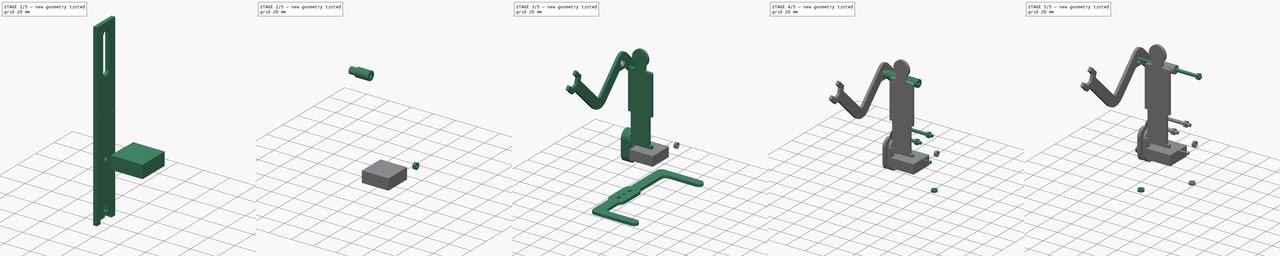
[diagram: build sequence overview — one tinted view per stage of 5, left to right]
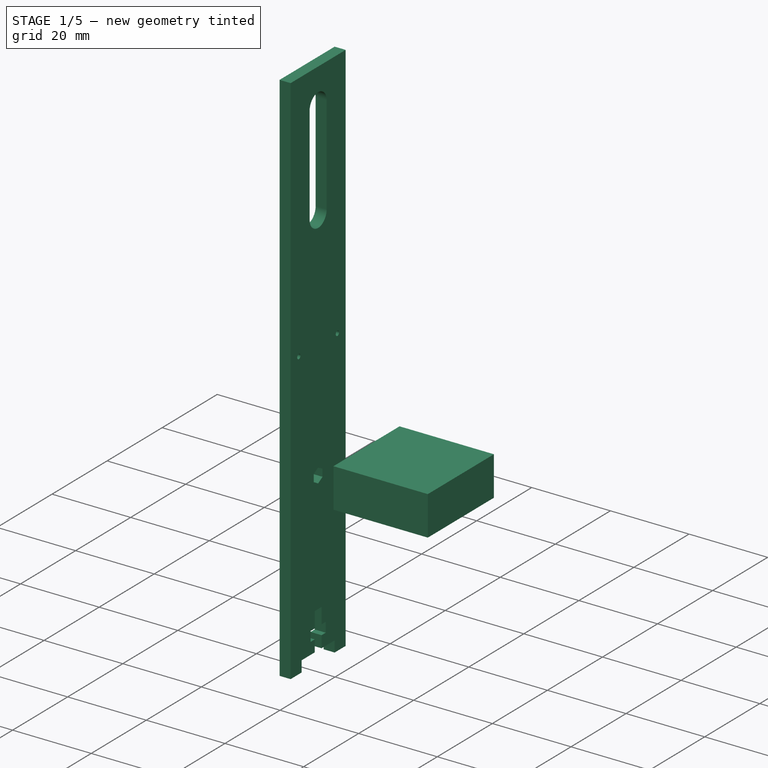
[diagram: stage 1 of 5 — iso view after this stage's code; geometry added in this stage tinted green]
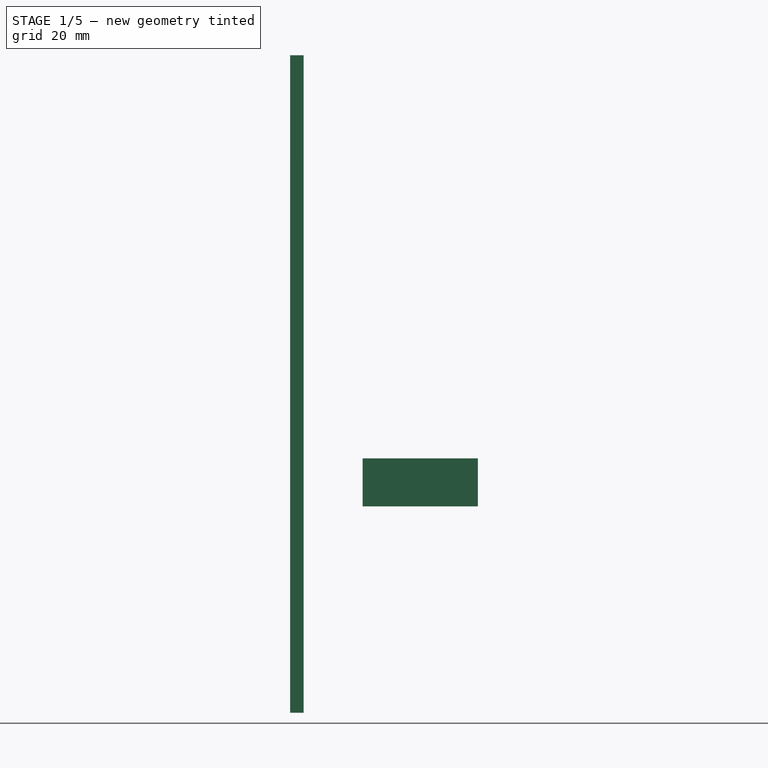
[diagram: stage 1 of 5 — front view after this stage's code; geometry added in this stage tinted green]
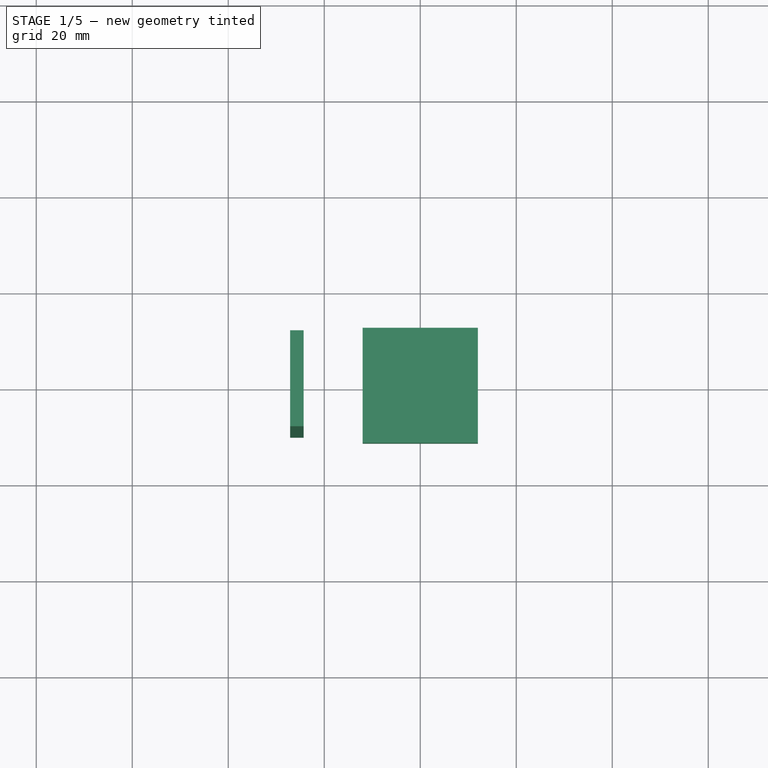
[diagram: stage 1 of 5 — top view after this stage's code; geometry added in this stage tinted green]
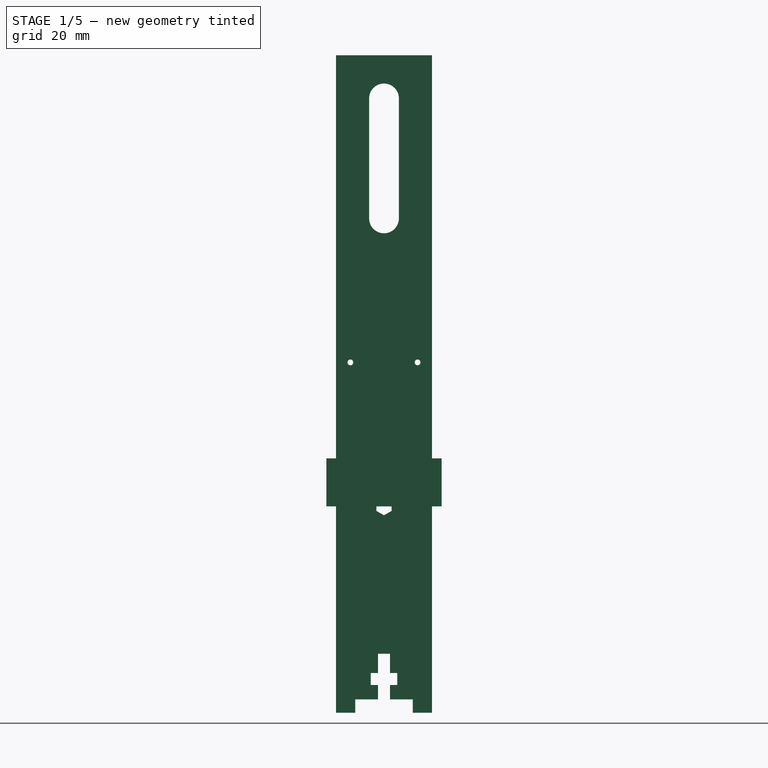
[diagram: stage 1 of 5 — right view after this stage's code; geometry added in this stage tinted green]
FCSTD DOCUMENT  (FreeCAD 0.21R33771 (Git))
Label: legged_robot_06
License: CERN Open Hardware Licence permissive
LicenseURL: https://cern-ohl.web.cern.ch/
objects: Part::FeaturePython×30, PartDesign::Body×21, PartDesign::SubShapeBinder×20, Sketcher::SketchObject×13, PartDesign::Pad×13, Part::Feature×10, App::FeaturePython×10, PartDesign::FeatureBase×9, PartDesign::Plane×5, App::DocumentObjectGroup×5, App::Link×3, Spreadsheet::Sheet×2, PartDesign::CoordinateSystem×2, Part::Box×2, Part::Cut×2, App::Part×2, PartDesign::Fillet×2
note: 143 computed .brp shape members not serialized (recipe doc carries the construction recipe); baked Part::Feature solids carry a one-line shape summary decoded from their .brp
EXTERNAL_REF file=BO_motor.FCStd obj=Compound001_child2
EXTERNAL_REF file=BO_motor.FCStd obj=Compound001_child0
EXTERNAL_REF file=BO_motor.FCStd obj=Cut001

FEATURE [Spreadsheet::Sheet] Spreadsheet
  cells = A1='acrylic_thick; B1(acrylic_thick)==4.9 mm; A2='acrylic_thin; B2(acrylic_thin)=2.8; A3='cam_length; B3(cam_length)=10; A4='angle; B4(angle)=270
FEATURE [Part::Feature] Compound002  label="motoreducteur001"
  Placement = pos=(25.85,-9.4,11.15) rot=(-1,0,0;1.5708rad)
  shape: bbox 70.34 x 38.2 x 22.5 mm, 234 faces, 3 solids (baked)
FEATURE [PartDesign::CoordinateSystem] Local_CS002
  AttacherType = Attacher::AttachEngine3D
  AttachmentOffset = pos=(0,0,0) rot=(0,-1,0;1.5708rad)
  MapMode = 11
  Placement = pos=(-2.8e-15,-19.1,1.8e-15) rot=(0,0,-1;1.5708rad)
  Support = -> [Compound002]
FEATURE [PartDesign::CoordinateSystem] Local_CS003
  AttacherType = Attacher::AttachEngine3D
  AttachmentOffset = pos=(0,0,0) rot=(0,1,0;1.5708rad)
  MapMode = 11
  Placement = pos=(-2.8e-15,19.1,1.9e-15) rot=(0,0,1;4.71239rad)
  Support = -> [Compound002]
FEATURE [PartDesign::SubShapeBinder] Binder
  BindCopyOnChange = 0
  BindMode = 0
  ClaimChildren = false
  Context = -> Body [Binder.]
  Fuse = false
  MakeFace = true
  OffsetFill = false
  OffsetIntersection = false
  OffsetJoinType = 0
  OffsetOpenResult = false
  PartialLoad = false
  Relative = true
  Support = -> [Part001]
  _Version = 2
FEATURE [Sketcher::SketchObject] Sketch
  ExternalGeometry = -> [Binder]
  FullyConstrained = true
  MapMode = 5
  Placement = pos=(-18.4,0,0) rot=(0.57735,-0.57735,-0.57735;2.0944rad)
  Support = -> [Binder]
  expr: Constraints[38] = Spreadsheet.cam_length
  expr: Constraints[81] = Spreadsheet.angle
  sketch-geometry (37):
    g0: ArcOfCircle CenterX=3.55 CenterY=5 CenterZ=0 NormalX=0 NormalY=0 NormalZ=1 AngleXU=0 Radius=0.4 StartAngle=0 EndAngle=3.14159
    g1: ArcOfCircle CenterX=3.55 CenterY=-5 CenterZ=0 NormalX=0 NormalY=0 NormalZ=1 AngleXU=0 Radius=0.4 StartAngle=3.14159 EndAngle=6.28319
    g2: LineSegment StartX=3.15 StartY=5 StartZ=0 EndX=3.15 EndY=-5 EndZ=0
    g3: LineSegment StartX=3.95 StartY=-5 StartZ=0 EndX=3.95 EndY=5 EndZ=0
    g4: ArcOfCircle CenterX=-3.55 CenterY=5 CenterZ=0 NormalX=0 NormalY=0 NormalZ=1 AngleXU=0 Radius=0.4 StartAngle=3e-16 EndAngle=3.14159
    g5: ArcOfCircle CenterX=-3.55 CenterY=-5 CenterZ=0 NormalX=0 NormalY=0 NormalZ=1 AngleXU=0 Radius=0.4 StartAngle=3.14159 EndAngle=6.28319
    g6: LineSegment StartX=-3.15 StartY=-5 StartZ=0 EndX=-3.15 EndY=5 EndZ=0
    g7: LineSegment StartX=3.55 StartY=5 StartZ=0 EndX=3.55 EndY=-5 EndZ=0
    g8: LineSegment StartX=-3.55 StartY=5 StartZ=0 EndX=-3.55 EndY=-5 EndZ=0
    g9: ArcOfCircle CenterX=1.55 CenterY=5 CenterZ=0 NormalX=0 NormalY=0 NormalZ=1 AngleXU=0 Radius=0.2 StartAngle=0 EndAngle=3.14159
    g10: ArcOfCircle CenterX=1.55 CenterY=-5 CenterZ=0 NormalX=0 NormalY=0 NormalZ=1 AngleXU=0 Radius=0.2 StartAngle=3.14159 EndAngle=6.28319
    g11: LineSegment StartX=1.35 StartY=5 StartZ=0 EndX=1.35 EndY=2.16333 EndZ=0
    g12: LineSegment StartX=1.75 StartY=-5 StartZ=0 EndX=1.75 EndY=5 EndZ=0
    g13: ArcOfCircle CenterX=-1.55 CenterY=5 CenterZ=0 NormalX=0 NormalY=0 NormalZ=1 AngleXU=0 Radius=0.2 StartAngle=5e-16 EndAngle=3.14159
    g14: ArcOfCircle CenterX=-1.55 CenterY=-5 CenterZ=0 NormalX=0 NormalY=0 NormalZ=1 AngleXU=0 Radius=0.2 StartAngle=3.14159 EndAngle=6.28319
    g15: LineSegment StartX=-1.75 StartY=5 StartZ=0 EndX=-1.75 EndY=-5 EndZ=0
    g16: LineSegment StartX=-1.35 StartY=-5 StartZ=0 EndX=-1.35 EndY=-2.16333 EndZ=0
    g17: LineSegment StartX=1.55 StartY=5 StartZ=0 EndX=1.55 EndY=-5 EndZ=0
    g18: LineSegment StartX=-1.55 StartY=5 StartZ=0 EndX=-1.55 EndY=-5 EndZ=0
    g19: LineSegment StartX=3.55 StartY=-4.2e-15 StartZ=0 EndX=1.55 EndY=-3.8e-15 EndZ=0
    g20: ArcOfCircle CenterX=9.6e-15 CenterY=5 CenterZ=0 NormalX=0 NormalY=0 NormalZ=1 AngleXU=0 Radius=7.5 StartAngle=0 EndAngle=3.14159
    g21: ArcOfCircle CenterX=6.9e-15 CenterY=-10 CenterZ=0 NormalX=0 NormalY=0 NormalZ=1 AngleXU=0 Radius=7.5 StartAngle=3.14159 EndAngle=6.28319
    g22: LineSegment StartX=-7.5 StartY=5 StartZ=0 EndX=-7.5 EndY=-10 EndZ=0
    g23: LineSegment StartX=7.5 StartY=-10 StartZ=0 EndX=7.5 EndY=5 EndZ=0
    g24: LineSegment StartX=8.7e-15 StartY=-3.6e-15 StartZ=0 EndX=9.6e-15 EndY=5 EndZ=0
    g25: LineSegment StartX=8.7e-15 StartY=-3.6e-15 StartZ=0 EndX=6.9e-15 EndY=-10 EndZ=0
    g26: Circle CenterX=6.9e-15 CenterY=-10 CenterZ=0 NormalX=0 NormalY=0 NormalZ=1 AngleXU=0 Radius=3.1
    g27: LineSegment StartX=-3.95 StartY=-5 StartZ=0 EndX=-3.95 EndY=5 EndZ=0
    g28: LineSegment StartX=1.55 StartY=-3.8e-15 StartZ=0 EndX=8.7e-15 EndY=-3.6e-15 EndZ=0
    g29: Circle CenterX=8.7e-15 CenterY=-3.6e-15 CenterZ=0 NormalX=0 NormalY=0 NormalZ=1 AngleXU=0 Radius=1.75
    g30: LineSegment StartX=-1.75 StartY=-4.1e-15 StartZ=0 EndX=-1.85 EndY=-4.1e-15 EndZ=0
    g31: LineSegment StartX=-3.55 StartY=-2.9e-15 StartZ=0 EndX=-1.55 EndY=-3.3e-15 EndZ=0
    g32: LineSegment StartX=8.7e-15 StartY=-3.6e-15 StartZ=0 EndX=-1.55 EndY=-3.3e-15 EndZ=0
    g33: LineSegment StartX=-1.35 StartY=2.16333 StartZ=0 EndX=-1.35 EndY=5 EndZ=0
    g34: LineSegment StartX=1.35 StartY=-2.16333 StartZ=0 EndX=1.35 EndY=-5 EndZ=0
    g35: ArcOfCircle CenterX=8.7e-15 CenterY=-3.6e-15 CenterZ=0 NormalX=0 NormalY=0 NormalZ=1 AngleXU=0 Radius=2.55 StartAngle=1.01289 EndAngle=2.1287
    g36: ArcOfCircle CenterX=8.7e-15 CenterY=-3.6e-15 CenterZ=0 NormalX=0 NormalY=0 NormalZ=1 AngleXU=0 Radius=2.55 StartAngle=4.15448 EndAngle=5.2703
  constraints (89):
    c: Tangent(g0,g2) = -1.5708
    c: Tangent(g2,g1) = -1.5708
    c: Tangent(g1,g3) = -1.5708
    c: Tangent(g5,g6) = -1.5708
    c: Tangent(g6,g4) = -1.5708
    c: Radius(g0) = 0.4
    c: Coincident(g7,g0)
    c: Coincident(g7,g1)
    c: Coincident(g8,g4)
    c: Coincident(g8,g5)
    c: Equal(g7,g8)
    c: Distance(g7) = 10
    c: Tangent(g9,g11) = -1.5708
    c: Tangent(g10,g12) = -1.5708
    c: Tangent(g12,g9) = -1.5708
    c: Tangent(g13,g15) = -1.5708
    c: Tangent(g15,g14) = -1.5708
    c: Tangent(g14,g16) = -1.5708
    c: Coincident(g17,g9)
    c: Coincident(g17,g10)
    c: Coincident(g18,g13)
    c: Coincident(g18,g14)
    c: Equal(g17,g7)
    c: Equal(g8,g18)
    c: Symmetric(g10,g9,g19)
    c: Distance(g19) = 2
    c: Perpendicular(g7,g19)
    c: Parallel(g17,g7)
    c: Parallel(g18,g8)
    c: Tangent(g20,g22) = -1.5708
    c: Tangent(g22,g21) = -1.5708
    c: Tangent(g21,g23) = -1.5708
    c: Tangent(g23,g20) = -1.5708
    c: Equal(g20,g21)
    c: Coincident(g24,g20)
    c: Coincident(g25,g21)
    c: Diameter(g20) = 15
    c: Distance(g24) = 5
    c: Distance(g25) = 10
    c: Coincident(g26,g21)
    c: Diameter(g26) = 6.2
    c: Tangent(g27,g4) = 1.5708
    c: Tangent(g27,g5) = 1.5708
    c: Symmetric(g0,g1,g19)
    c: Coincident(g28,g19)
    c: Parallel(g28,g19)
    c: Perpendicular(g28,g24)
    c: Tangent(g0,g3) = -1.5708
    c: PointOnObject(g30,g29)
    c: Horizontal(g30)
    c: Symmetric(g-5,g-5,g30)
    c: DistanceX(g30,g30) = 0.1
    c: Perpendicular(g25,g28)
    c: Symmetric(g14,g13,g31)
    c: Symmetric(g5,g4,g31)
    c: Equal(g31,g19)
    c: Coincident(g32,g31)
    c: Equal(g28,g32)
    c: Perpendicular(g32,g24)
    c: Perpendicular(g32,g18)
    c: Perpendicular(g18,g31)
    c: Tangent(g15,g29)
    c: PointOnObject(g34,g11)
    c: PointOnObject(g33,g-3)
    c: Parallel(g33,g17)
    c: Parallel(g17,g34)
    c: Tangent(g33,g13) = -1.5708
    c: Tangent(g34,g10) = -1.5708
    c: Coincident(g25,g32)
    c: Coincident(g25,g24)
    c: Coincident(g25,g28)
    c: Coincident(g24,g29)
    c: Coincident(g35,g24)
    c: Coincident(g35,g33)
    c: Coincident(g35,g11)
    c: Coincident(g36,g35)
    c: Coincident(g36,g34)
    c: Equal(g36,g-4)
    c: Coincident(g16,g36)
    c: Parallel(g16,g18)
    c: Coincident(g35,g-4)
    c: Angle(g25) = 4.71239
    c: Equal(g5,g1)
    c: Equal(g1,g4)
    c: Equal(g4,g0)
    c: Equal(g13,g9)
    c: Equal(g9,g14)
    c: Equal(g14,g10)
    c: Radius(g9) = 0.2
FEATURE [PartDesign::SubShapeBinder] Binder001
  BindCopyOnChange = 0
  BindMode = 0
  ClaimChildren = false
  Context = -> Body002 [Binder001.]
  Fuse = false
  MakeFace = true
  OffsetFill = false
  OffsetIntersection = false
  OffsetJoinType = 0
  OffsetOpenResult = false
  PartialLoad = false
  Relative = true
  Support = -> [Part001]
  _Version = 2
FEATURE [Part::Box] Box  label="Cube"
  AttacherType = Attacher::AttachEngine3D
  Height = 10
  Length = 10
  Placement = pos=(-5,18.4,-5) rot=(0,0,1;0rad)
  Width = 10
FEATURE [Part::Box] Box001  label="Cube001"
  AttacherType = Attacher::AttachEngine3D
  Height = 10
  Length = 10
  Placement = pos=(-5,-28.4,-5) rot=(0,0,1;0rad)
  Width = 10
FEATURE [Part::Cut] Cut
  Base = -> Compound002
  Tool = -> Box
FEATURE [Part::Cut] Cut001
  Base = -> Cut
  Tool = -> Box001
FEATURE [App::Part] Part001  label="Motor"
  Group = -> [Box001,Compound002,Local_CS002,Local_CS003,Box,Cut,Cut001]
  Origin = -> Origin004
  Placement = pos=(0,0,0) rot=(-0.57735,0.57735,-0.57735;4.18879rad)
FEATURE [PartDesign::Pad] Pad
  Direction = (-1,2e-16,-2e-16)
  Length = 2.8
  Length2 = 10
  Profile = -> Sketch
  ReferenceAxis = -> Sketch [N_Axis]
  Reversed = true
  Type = 0
  expr: Length = Spreadsheet.acrylic_thin
FEATURE [PartDesign::Body] Body  label="cam_right_1"
  Group = -> [Sketch,Binder,Pad]
  Origin = -> Origin001
  Tip = -> Pad
FEATURE [PartDesign::SubShapeBinder] Binder002
  BindCopyOnChange = 0
  BindMode = 0
  ClaimChildren = false
  Context = -> Body003 [Binder002.]
  Fuse = false
  MakeFace = true
  OffsetFill = false
  OffsetIntersection = false
  OffsetJoinType = 0
  OffsetOpenResult = false
  PartialLoad = false
  Relative = true
  Support = -> [Body]
  _Version = 2
FEATURE [PartDesign::Plane] DatumPlane001
  AttachmentOffset = pos=(0,0,0.1) rot=(0,0,1;0rad)
  Length = 60
  MapMode = 5
  Placement = pos=(-18.5,5.2e-15,-3.9e-15) rot=(-0.57735,0.57735,0.57735;4.18879rad)
  ResizeMode = 0
  Support = -> [Binder002]
  Width = 60
FEATURE [Sketcher::SketchObject] Sketch002
  ExternalGeometry = -> [Binder002]
  FullyConstrained = true
  MapMode = 5
  Placement = pos=(-18.5,5.2e-15,-3.9e-15) rot=(-0.57735,0.57735,0.57735;4.18879rad)
  Support = -> [DatumPlane001]
  sketch-geometry (6):
    g0: ArcOfCircle CenterX=-1.6948e-12 CenterY=5 CenterZ=0 NormalX=0 NormalY=0 NormalZ=1 AngleXU=0 Radius=7.5 StartAngle=2.58e-13 EndAngle=3.14159
    g1: ArcOfCircle CenterX=2.174e-12 CenterY=-10 CenterZ=0 NormalX=0 NormalY=0 NormalZ=1 AngleXU=0 Radius=7.5 StartAngle=3.14159 EndAngle=6.28319
    g2: LineSegment StartX=-7.5 StartY=5 StartZ=0 EndX=-7.5 EndY=-10 EndZ=0
    g3: LineSegment StartX=7.5 StartY=-10 StartZ=0 EndX=7.5 EndY=5 EndZ=0
    g4: Circle CenterX=2.174e-12 CenterY=-10 CenterZ=0 NormalX=0 NormalY=0 NormalZ=1 AngleXU=0 Radius=3.1
    g5: Circle CenterX=0 CenterY=0 CenterZ=0 NormalX=0 NormalY=0 NormalZ=1 AngleXU=0 Radius=1
  constraints (12):
    c: Tangent(g0,g2) = -1.5708
    c: Tangent(g2,g1) = -1.5708
    c: Tangent(g1,g3) = -1.5708
    c: Tangent(g3,g0) = -1.5708
    c: Equal(g0,g1)
    c: Coincident(g0,g-3)
    c: Coincident(g1,g-5)
    c: Equal(g0,g-3)
    c: Coincident(g4,g1)
    c: Equal(g4,g-5)
    c: Coincident(g5,g-6)
    c: Diameter(g5) = 2
FEATURE [PartDesign::Pad] Pad002
  Direction = (-1,2e-16,-2e-16)
  Length = 2.8
  Length2 = 10
  Placement = pos=(-18.5,5e-15,-4e-15) rot=(0.57735,-0.57735,-0.57735;2.0944rad)
  Profile = -> Sketch002
  ReferenceAxis = -> Sketch002 [N_Axis]
  Type = 0
  expr: Length = Spreadsheet.acrylic_thin
FEATURE [PartDesign::Body] Body003  label="cam_right_2"
  Group = -> [Binder002,DatumPlane001,Sketch002,Pad002]
  Origin = -> Origin
  Tip = -> Pad002
FEATURE [PartDesign::SubShapeBinder] Binder003
  BindCopyOnChange = 0
  BindMode = 0
  ClaimChildren = false
  Context = -> Body004 [Binder003.]
  Fuse = false
  MakeFace = true
  OffsetFill = false
  OffsetIntersection = false
  OffsetJoinType = 0
  OffsetOpenResult = false
  PartialLoad = false
  Relative = true
  Support = -> [Body003]
  _Version = 2
FEATURE [PartDesign::Plane] DatumPlane002
  AttachmentOffset = pos=(0,0,0.1) rot=(0,0,1;0rad)
  Length = 60
  MapMode = 5
  Placement = pos=(-21.4,5.3e-15,-1.05e-14) rot=(-0.57735,0.57735,0.57735;4.18879rad)
  ResizeMode = 0
  Support = -> [Binder003]
  Width = 60
FEATURE [Sketcher::SketchObject] Sketch003
  ExternalGeometry = -> [Binder003]
  FullyConstrained = true
  MapMode = 5
  Placement = pos=(-21.4,5.3e-15,-1.05e-14) rot=(-0.57735,0.57735,0.57735;4.18879rad)
  Support = -> [DatumPlane002]
  sketch-geometry (6):
    g0: ArcOfCircle CenterX=-1.6956e-12 CenterY=5 CenterZ=0 NormalX=0 NormalY=0 NormalZ=1 AngleXU=0 Radius=7.5 StartAngle=2.581e-13 EndAngle=3.14159
    g1: ArcOfCircle CenterX=2.1765e-12 CenterY=-10 CenterZ=0 NormalX=0 NormalY=0 NormalZ=1 AngleXU=0 Radius=7.5 StartAngle=3.14159 EndAngle=6.28319
    g2: LineSegment StartX=-7.5 StartY=5 StartZ=0 EndX=-7.5 EndY=-10 EndZ=0
    g3: LineSegment StartX=7.5 StartY=-10 StartZ=0 EndX=7.5 EndY=5 EndZ=0
    g4: Circle CenterX=2.1765e-12 CenterY=-10 CenterZ=0 NormalX=0 NormalY=0 NormalZ=1 AngleXU=0 Radius=3.1
    g5: Circle CenterX=0 CenterY=0 CenterZ=0 NormalX=0 NormalY=0 NormalZ=1 AngleXU=0 Radius=3
  constraints (12):
    c: Tangent(g0,g2) = -1.5708
    c: Tangent(g2,g1) = -1.5708
    c: Tangent(g1,g3) = -1.5708
    c: Tangent(g3,g0) = -1.5708
    c: Equal(g0,g1)
    c: Coincident(g0,g-3)
    c: Coincident(g1,g-5)
    c: Equal(g0,g-3)
    c: Coincident(g4,g1)
    c: Equal(g4,g-5)
    c: Coincident(g5,g-6)
    c: Diameter(g5) = 6
FEATURE [PartDesign::Pad] Pad003
  Direction = (-1,0,0)
  Length = 2.8
  Length2 = 10
  Placement = pos=(-21.4,1e-15,-2e-15) rot=(0.57735,-0.57735,-0.57735;2.0944rad)
  Profile = -> Sketch003
  ReferenceAxis = -> Sketch003 [N_Axis]
  Type = 0
  expr: Length = Spreadsheet.acrylic_thin
FEATURE [PartDesign::Body] Body004  label="cam_right_3"
  Group = -> [Binder003,DatumPlane002,Sketch003,Pad003]
  Origin = -> Origin005
  Tip = -> Pad003
FEATURE [PartDesign::SubShapeBinder] Binder004
  BindCopyOnChange = 0
  BindMode = 0
  ClaimChildren = false
  Context = -> Body002 [Binder004.]
  Fuse = false
  MakeFace = true
  OffsetFill = false
  OffsetIntersection = false
  OffsetJoinType = 0
  OffsetOpenResult = false
  PartialLoad = false
  Relative = true
  Support = -> [Body004]
  _Version = 2
FEATURE [PartDesign::Plane] DatumPlane003
  AttachmentOffset = pos=(0,0,0.1) rot=(0,0,1;0rad)
  Length = 66.5529
  MapMode = 5
  Placement = pos=(-24.3,-2.7e-15,-2.7e-15) rot=(0.57735,-0.57735,-0.57735;2.0944rad)
  ResizeMode = 0
  Support = -> [Binder004]
  Width = 153.553
FEATURE [Sketcher::SketchObject] Sketch001
  ExternalGeometry = -> [Binder004]
  FullyConstrained = true
  MapMode = 5
  Placement = pos=(-24.3,-2.7e-15,-2.7e-15) rot=(0.57735,-0.57735,-0.57735;2.0944rad)
  Support = -> [DatumPlane003]
  expr: Constraints[117] = Spreadsheet.angle
  expr: Constraints[124] = Spreadsheet.acrylic_thin
  expr: Constraints[50] = Spreadsheet.cam_length
  sketch-geometry (45):
    g0: LineSegment StartX=-10 StartY=84 StartZ=0 EndX=10 EndY=84 EndZ=0
    g1: LineSegment StartX=10 StartY=84 StartZ=0 EndX=10 EndY=-53 EndZ=0
    g2: LineSegment StartX=10 StartY=-53 StartZ=0 EndX=-10 EndY=-53 EndZ=0
    g3: LineSegment StartX=-10 StartY=-53 StartZ=0 EndX=-10 EndY=84 EndZ=0
    g4: LineSegment StartX=1.6 StartY=-9.07624 StartZ=0 EndX=-3.1e-15 EndY=-8.15248 EndZ=0
    g5: LineSegment StartX=-3.1e-15 StartY=-8.15248 StartZ=0 EndX=-1.6 EndY=-9.07624 EndZ=0
    g6: LineSegment StartX=-1.6 StartY=-9.07624 StartZ=0 EndX=-1.6 EndY=-10.9238 EndZ=0
    g7: LineSegment StartX=-1.6 StartY=-10.9238 StartZ=0 EndX=-4.4e-15 EndY=-11.8475 EndZ=0
    g8: LineSegment StartX=-4.4e-15 StartY=-11.8475 StartZ=0 EndX=1.6 EndY=-10.9238 EndZ=0
    g9: LineSegment StartX=1.6 StartY=-10.9238 StartZ=0 EndX=1.6 EndY=-9.07624 EndZ=0
    g10: Circle CenterX=-1.8e-15 CenterY=-10 CenterZ=0 NormalX=0 NormalY=0 NormalZ=1 AngleXU=0 Radius=1.84752
    g11: LineSegment StartX=-1.8e-15 StartY=-10 StartZ=0 EndX=-10 EndY=-10 EndZ=0
    g12: LineSegment StartX=-1.8e-15 StartY=-10 StartZ=0 EndX=10 EndY=-10 EndZ=0
    g13: ArcOfCircle CenterX=8e-16 CenterY=75 CenterZ=0 NormalX=0 NormalY=0 NormalZ=1 AngleXU=0 Radius=3.1 StartAngle=-2.7e-15 EndAngle=3.14159
    g14: ArcOfCircle CenterX=-2e-16 CenterY=50 CenterZ=0 NormalX=0 NormalY=0 NormalZ=1 AngleXU=0 Radius=3.1 StartAngle=3.14159 EndAngle=6.28319
    g15: LineSegment StartX=-3.1 StartY=75 StartZ=0 EndX=-3.1 EndY=50 EndZ=0
    g16: LineSegment StartX=3.1 StartY=50 StartZ=0 EndX=3.1 EndY=75 EndZ=0
    g17: LineSegment StartX=8e-16 StartY=75 StartZ=0 EndX=1.2e-15 EndY=84 EndZ=0
    g18: Circle CenterX=-1.8e-15 CenterY=-10 CenterZ=0 NormalX=0 NormalY=0 NormalZ=1 AngleXU=0 Radius=1.6
    g19: LineSegment StartX=0 StartY=0 StartZ=0 EndX=-1.8e-15 EndY=-10 EndZ=0
    g20: Circle CenterX=0 CenterY=71 CenterZ=0 NormalX=0 NormalY=0 NormalZ=1 AngleXU=0 Radius=3.1
    g21: LineSegment StartX=0 StartY=71 StartZ=0 EndX=0 EndY=0 EndZ=0
    g22: LineSegment StartX=-2e-16 StartY=50 StartZ=0 EndX=3e-16 EndY=62.5 EndZ=0
    g23: LineSegment StartX=8e-16 StartY=75 StartZ=0 EndX=3e-16 EndY=62.5 EndZ=0
    g24: LineSegment StartX=-10 StartY=-53 StartZ=0 EndX=-6 EndY=-53 EndZ=0
    g25: LineSegment StartX=-6 StartY=-53 StartZ=0 EndX=-6 EndY=-50.2 EndZ=0
    g26: LineSegment StartX=-6 StartY=-50.2 StartZ=0 EndX=-1.25 EndY=-50.2 EndZ=0
    g27: LineSegment StartX=-1.25 StartY=-50.2 StartZ=0 EndX=-1.25 EndY=-47.2 EndZ=0
    g28: LineSegment StartX=-1.25 StartY=-47.2 StartZ=0 EndX=-2.75 EndY=-47.2 EndZ=0
    g29: LineSegment StartX=-2.75 StartY=-47.2 StartZ=0 EndX=-2.75 EndY=-44.7 EndZ=0
    g30: LineSegment StartX=-2.75 StartY=-44.7 StartZ=0 EndX=-1.25 EndY=-44.7 EndZ=0
    g31: LineSegment StartX=-1.25 StartY=-44.7 StartZ=0 EndX=-1.25 EndY=-40.7 EndZ=0
    g32: LineSegment StartX=-1.25 StartY=-40.7 StartZ=0 EndX=1.25 EndY=-40.7 EndZ=0
    g33: LineSegment StartX=1.25 StartY=-40.7 StartZ=0 EndX=1.25 EndY=-44.7 EndZ=0
    g34: LineSegment StartX=1.25 StartY=-44.7 StartZ=0 EndX=2.75 EndY=-44.7 EndZ=0
    g35: LineSegment StartX=2.75 StartY=-44.7 StartZ=0 EndX=2.75 EndY=-47.2 EndZ=0
    g36: LineSegment StartX=2.75 StartY=-47.2 StartZ=0 EndX=1.25 EndY=-47.2 EndZ=0
    g37: LineSegment StartX=1.25 StartY=-47.2 StartZ=0 EndX=1.25 EndY=-50.2 EndZ=0
    g38: LineSegment StartX=1.25 StartY=-50.2 StartZ=0 EndX=6 EndY=-50.2 EndZ=0
    g39: LineSegment StartX=6 StartY=-50.2 StartZ=0 EndX=6 EndY=-53 EndZ=0
    g40: LineSegment StartX=6 StartY=-53 StartZ=0 EndX=10 EndY=-53 EndZ=0
    g41: LineSegment StartX=-7 StartY=-10 StartZ=0 EndX=-7 EndY=20 EndZ=0
    g42: LineSegment StartX=7 StartY=20 StartZ=0 EndX=7 EndY=-10 EndZ=0
    g43: Circle CenterX=-7 CenterY=20 CenterZ=0 NormalX=0 NormalY=0 NormalZ=1 AngleXU=0 Radius=0.6
    g44: Circle CenterX=7 CenterY=20 CenterZ=0 NormalX=0 NormalY=0 NormalZ=1 AngleXU=0 Radius=0.6
  constraints (123):
    c: Coincident(g0,g1)
    c: Coincident(g1,g2)
    c: Coincident(g2,g3)
    c: Coincident(g3,g0)
    c: Coincident(g4,g5)
    c: Coincident(g5,g6)
    c: Coincident(g6,g7)
    c: Coincident(g7,g8)
    c: Coincident(g8,g9)
    c: Coincident(g9,g4)
    c: Equal(g4, g5-g9) x5
    c: PointOnObject(g4,g10)
    c: PointOnObject(g5,g10)
    c: PointOnObject(g6,g10)
    c: PointOnObject(g7,g10)
    c: PointOnObject(g8,g10)
    c: PointOnObject(g9,g10)
    c: Distance(g0) = 20
    c: Perpendicular(g3,g0)
    c: Perpendicular(g1,g2)
    c: Perpendicular(g2,g3)
    c: Coincident(g11,g10)
    c: PointOnObject(g11,g3)
    c: Coincident(g12,g10)
    c: PointOnObject(g12,g1)
    c: Perpendicular(g1,g12)
    c: Perpendicular(g3,g11)
    c: Equal(g11,g12)
    c: Distance(g3) = 137
    c: Perpendicular(g11,g6)
    c: Tangent(g13,g15) = -1.5708
    c: Tangent(g15,g14) = -1.5708
    c: Tangent(g14,g16) = -1.5708
    c: Tangent(g16,g13) = -1.5708
    c: Equal(g13,g14)
    c: Diameter(g14) = 6.2
    c: Distance(g13,g14) = 25
    c: Coincident(g17,g13)
    c: Perpendicular(g0,g17)
    c: Distance(g17) = 9
    c: Distance(g10,g14) = 60
    c: Symmetric(g0,g0,g17)
    c: Parallel(g15,g3)
    c: Coincident(g18,g10)
    c: Diameter(g18) = 3.2
    c: Coincident(g19,g10)
    c: Distance(g19) = 10
    c: Coincident(g21,g20)
    c: DistanceY(g21,g21) = 71
    c: Coincident(g21,g19)
    c: Coincident(g22,g14)
    c: Coincident(g23,g13)
    c: Coincident(g23,g22)
    c: Equal(g23,g22)
    c: Parallel(g23,g15)
    c: Tangent(g20,g16)
    c: Vertical(g21)
    c: Coincident(g24,g3)
    c: Coincident(g24,g25)
    c: Coincident(g25,g26)
    c: Coincident(g26,g27)
    c: Coincident(g27,g28)
    c: Coincident(g28,g29)
    c: Coincident(g29,g30)
    c: Coincident(g30,g31)
    c: Coincident(g31,g32)
    c: Coincident(g32,g33)
    c: Coincident(g33,g34)
    c: Coincident(g34,g35)
    c: Coincident(g35,g36)
    c: Coincident(g36,g37)
    c: Coincident(g37,g38)
    c: Coincident(g38,g39)
    c: Coincident(g39,g40)
    c: Coincident(g40,g1)
    c: Perpendicular(g24,g3)
    c: Perpendicular(g40,g1)
    c: Perpendicular(g39,g40)
    c: Perpendicular(g24,g25)
    c: Perpendicular(g26,g25)
    c: Perpendicular(g39,g38)
    c: Perpendicular(g38,g37)
    c: Perpendicular(g26,g27)
    c: Perpendicular(g36,g37)
    c: Perpendicular(g27,g28)
    c: Perpendicular(g35,g36)
    c: Perpendicular(g29,g28)
    c: Perpendicular(g35,g34)
    c: Perpendicular(g30,g29)
    c: Perpendicular(g34,g33)
    c: Perpendicular(g31,g30)
    c: Equal(g25,g39)
    c: Equal(g37,g27)
    c: Equal(g36,g28)
    c: Equal(g30,g34)
    c: Equal(g26,g38)
    c: Distance(g29,g34) = 5.5
    c: Equal(g32,g29)
    c: Equal(g29,g35)
    c: Distance(g31) = 4
    c: Perpendicular(g32,g33)
    c: Equal(g28,g30)
    c: PointOnObject(g41,g11)
    c: Symmetric(g41,g42,g10)
    c: Equal(g41,g42)
    c: Distance(g41,g11) = 3
    c: Coincident(g43,g41)
    c: Coincident(g44,g42)
    c: Equal(g44,g43)
    c: Diameter(g44) = 1.2
    c: Distance(g41) = 30
    c: Perpendicular(g12,g42)
    c: Perpendicular(g11,g41)
    c: Angle(g19) = 4.71239
    c: Equal(g24,g40)
    c: Distance(g24) = 4
    c: DistanceY(g3,g19) = 53
    c: Tangent(g18,g6)
    c: Coincident(g19,g-1)
    c: DistanceY(g29,g29) = 2.5
    c: DistanceY(g25,g25) = 2.8
    c: DistanceY(g27,g27) = 3
    c: Equal(g14,g20)
FEATURE [PartDesign::Pad] Pad004
  Direction = (-1,1e-16,-3e-16)
  Length = 2.8
  Length2 = 10
  Placement = pos=(-24.3,-3e-15,-5e-15) rot=(0.57735,-0.57735,-0.57735;2.0944rad)
  Profile = -> Sketch001
  ReferenceAxis = -> Sketch001 [N_Axis]
  Type = 0
  expr: Length = Spreadsheet.acrylic_thin
FEATURE [App::DocumentObjectGroup] Group  label="Fasteners"
  Group = -> [Washer,Nut001,Washer001,Nut002,ThreadedRod,Screw,Nut,Screw001,Screw002,Screw003,Nut003,Screw004,Nut004,Screw005,Nut005,Screw006,Nut006,Screw007,Nut007]
FEATURE [Spreadsheet::Sheet] Fasteners_BOM
  cells = A1='Type; B1='Qty; A2='DIN967 Screw M3x10; B2=2; A3='DIN967 Screw M3x14; B3=2; A4='DIN967 Screw M3x30; B4=2; A5='ISO4032 Nut M3; B5=8; A6='ISO7045 Screw M1.6x10; B6=2; A7='ISO7093-1 Washer M3; B7=2; A8='Threaded Rod M3x70; B8=1
FEATURE [Sketcher::SketchObject] Sketch013
  FullyConstrained = true
  MapMode = 5
  Support = -> [XY_Plane026]
  sketch-geometry (4):
    g0: LineSegment StartX=-12 StartY=12 StartZ=0 EndX=12 EndY=12 EndZ=0
    g1: LineSegment StartX=12 StartY=12 StartZ=0 EndX=12 EndY=-12 EndZ=0
    g2: LineSegment StartX=12 StartY=-12 StartZ=0 EndX=-12 EndY=-12 EndZ=0
    g3: LineSegment StartX=-12 StartY=-12 StartZ=0 EndX=-12 EndY=12 EndZ=0
  constraints (11):
    c: Coincident(g0,g1)
    c: Coincident(g1,g2)
    c: Coincident(g2,g3)
    c: Coincident(g3,g0)
    c: Horizontal(g0)
    c: Horizontal(g2)
    c: Vertical(g1)
    c: Vertical(g3)
    c: Symmetric(g1,g0,g-1)
    c: Equal(g0,g3)
    c: DistanceX(g0,g0) = 24
FEATURE [PartDesign::Pad] Pad013
  Direction = (0,0,1)
  Length = 10
  Length2 = 10
  Profile = -> Sketch013
  ReferenceAxis = -> Sketch013 [N_Axis]
  Reversed = true
  Type = 0
FEATURE [PartDesign::Body] Body025  label="Body"
  Group = -> [Sketch013,Pad013]
  Origin = -> Origin028
  Tip = -> Pad013
FEATURE [App::DocumentObjectGroup] Group003  label="elec_parts"
  Group = -> [Part001,batt_9V005_cp_sp,Body025]
FEATURE [App::Link] Link  label="motor_body"
  LinkPlacement = pos=(0,0,0) rot=(0.57735,-0.57735,0.57735;2.0944rad)
  LinkedObject = -> <external BO_motor.FCStd>#Compound001_child2
  Placement = pos=(0,0,0) rot=(0.57735,-0.57735,0.57735;2.0944rad)
FEATURE [App::Link] Link001  label="motor_cap"
  LinkPlacement = pos=(0,0,0) rot=(0.57735,-0.57735,0.57735;2.0944rad)
  LinkedObject = -> <external BO_motor.FCStd>#Compound001_child0
  Placement = pos=(0,0,0) rot=(0.57735,-0.57735,0.57735;2.0944rad)
FEATURE [App::Link] Link002  label="motor_shaft"
  LinkPlacement = pos=(0,-2.19345e-06,-2.19345e-06) rot=(0.576959,-0.576959,0.578131;2.09322rad)
  LinkedObject = -> <external BO_motor.FCStd>#Cut001
  Placement = pos=(0,-2.19345e-06,-2.19345e-06) rot=(0.576959,-0.576959,0.578131;2.09322rad)
FEATURE [Part::FeaturePython] Workplane  # WARN: FeaturePython — macro-defined, semantics opaque (R4)
  Fixed = true
  Length = 100
  Placement = pos=(0,0,8) rot=(0,-1,0;1.5708rad)
  Width = 100
FEATURE [Part::FeaturePython] Parts  # WARN: FeaturePython — macro-defined, semantics opaque (R4)
  Group = -> [Link,Link001,Link002,Workplane]
  GroupMode = 0
FEATURE [Part::FeaturePython] Assembly  # WARN: FeaturePython — macro-defined, semantics opaque (R4)
  AutoRelax = true
  BuildShape = 0
  Freeze = false
  Group = -> [Constraints,Elements,Parts]
  Verbose = false
  _SolverType = 1
  _Version = 1
FEATURE [App::FeaturePython] Constraints  # WARN: FeaturePython — macro-defined, semantics opaque (R4)
  Group = -> [Constraint,Constraint001,Constraint003]
  _Version = 1
FEATURE [App::FeaturePython] Elements  # WARN: FeaturePython — macro-defined, semantics opaque (R4)
  Group = -> [_Element,_Element001,_Element002,_Element003,_Element004,_Element005,_Element006,_Element007]
FEATURE [App::FeaturePython] Constraint  label="Locked"  # WARN: FeaturePython — macro-defined, semantics opaque (R4)
  Disabled = false
  Group = -> [ElementLink]
  _ConstraintType = 0
  _Parent = -> Constraints
FEATURE [App::FeaturePython] ElementLink  label="_Element"  # link proxy (typed FeaturePython)
  LinkTransform = true
  LinkedObject = -> _Element
  _Parent = -> Constraint
FEATURE [Part::FeaturePython] _Element  # link proxy (typed FeaturePython)
  Detach = false
  LinkTransform = true
  LinkedObject = -> Link [Face35]
  _Parent = -> Elements
FEATURE [App::FeaturePython] Constraint001  label="Locked001"  # WARN: FeaturePython — macro-defined, semantics opaque (R4)
  Disabled = false
  Group = -> [ElementLink001]
  _ConstraintType = 0
  _Parent = -> Constraints
FEATURE [App::FeaturePython] ElementLink001  label="_Element001"  # link proxy (typed FeaturePython)
  LinkTransform = true
  LinkedObject = -> _Element001
  _Parent = -> Constraint001
FEATURE [Part::FeaturePython] _Element001  # link proxy (typed FeaturePython)
  Detach = false
  LinkTransform = true
  LinkedObject = -> Link001 [Face29]
  _Parent = -> Elements
FEATURE [Part::FeaturePython] _Element002  # link proxy (typed FeaturePython)
  Detach = false
  LinkTransform = true
  LinkedObject = -> Link [Face52]
  _Parent = -> Elements
FEATURE [Part::FeaturePython] _Element003  # link proxy (typed FeaturePython)
  Detach = false
  LinkTransform = true
  LinkedObject = -> Link [Face21]
  _Parent = -> Elements
FEATURE [Part::FeaturePython] _Element004  # link proxy (typed FeaturePython)
  Detach = false
  LinkTransform = true
  LinkedObject = -> Link002 [Face8]
  _Parent = -> Elements
FEATURE [App::FeaturePython] Constraint003  label="PointsSymmetric"  # WARN: FeaturePython — macro-defined, semantics opaque (R4)
  Disabled = false
  Group = -> [ElementLink005,ElementLink006,ElementLink007]
  _ConstraintType = 16
  _Parent = -> Constraints
FEATURE [App::FeaturePython] ElementLink005  label="_Element005"  # link proxy (typed FeaturePython)
  LinkTransform = true
  LinkedObject = -> _Element005
  _Parent = -> Constraint003
FEATURE [Part::FeaturePython] _Element005  # link proxy (typed FeaturePython)
  Detach = false
  LinkTransform = true
  LinkedObject = -> Link002 [Vertex15]
  _Parent = -> Elements
FEATURE [App::FeaturePython] ElementLink006  label="_Element006"  # link proxy (typed FeaturePython)
  LinkTransform = true
  LinkedObject = -> _Element006
  _Parent = -> Constraint003
FEATURE [Part::FeaturePython] _Element006  # link proxy (typed FeaturePython)
  Detach = false
  LinkTransform = true
  LinkedObject = -> Link002 [Vertex5]
  _Parent = -> Elements
FEATURE [App::FeaturePython] ElementLink007  label="_Element007"  # link proxy (typed FeaturePython)
  LinkTransform = true
  LinkedObject = -> _Element007
  _Parent = -> Constraint003
FEATURE [Part::FeaturePython] _Element007  # link proxy (typed FeaturePython)
  Detach = false
  LinkTransform = true
  LinkedObject = -> Workplane [Face1]
  _Parent = -> Elements
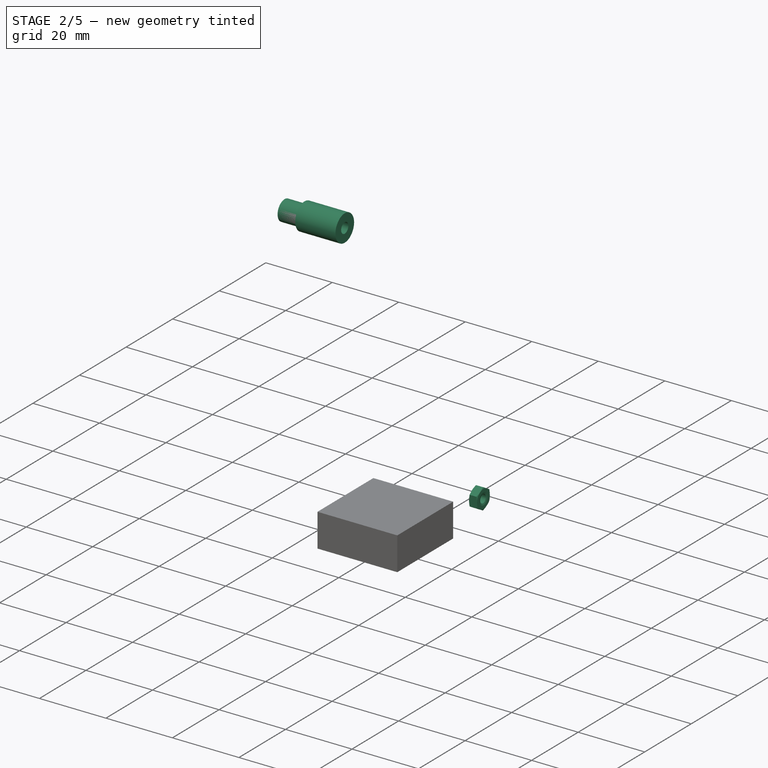
[diagram: stage 2 of 5 — iso view after this stage's code; geometry added in this stage tinted green]
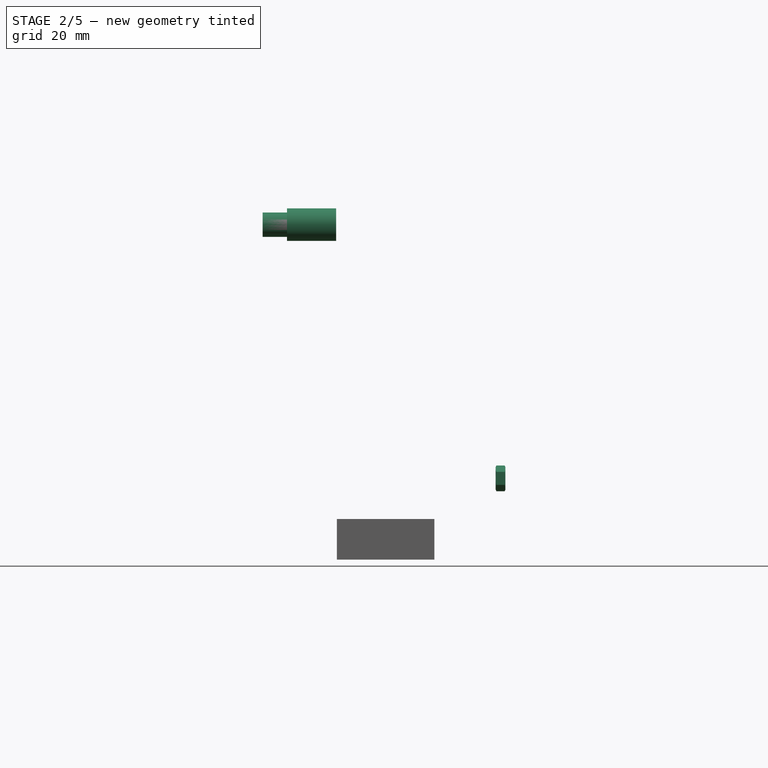
[diagram: stage 2 of 5 — front view after this stage's code; geometry added in this stage tinted green]
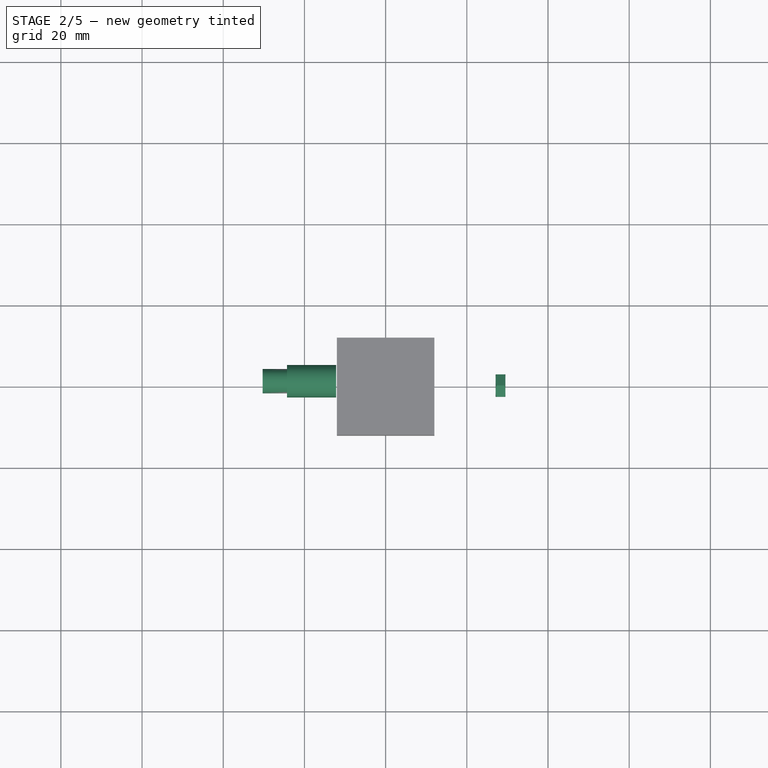
[diagram: stage 2 of 5 — top view after this stage's code; geometry added in this stage tinted green]
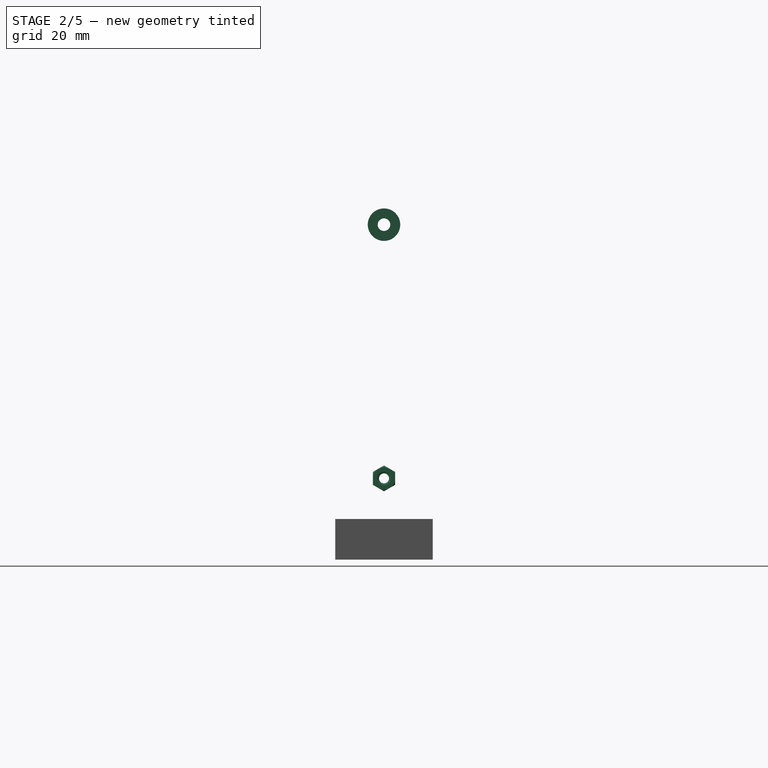
[diagram: stage 2 of 5 — right view after this stage's code; geometry added in this stage tinted green]
FEATURE [PartDesign::SubShapeBinder] Binder008
  BindCopyOnChange = 0
  BindMode = 0
  ClaimChildren = false
  Context = -> Body005 [Binder008.]
  Fuse = false
  MakeFace = true
  OffsetFill = false
  OffsetIntersection = false
  OffsetJoinType = 0
  OffsetOpenResult = false
  PartialLoad = false
  Relative = true
  Support = -> [Body002[Pad004.]]
  _Version = 2
FEATURE [Sketcher::SketchObject] Sketch004
  ExternalGeometry = -> [Binder005]
  FullyConstrained = true
  MapMode = 5
  Placement = pos=(-24.3,6.3e-15,-8e-15) rot=(0.57735,0.57735,0.57735;2.0944rad)
  Support = -> [Binder008]
  sketch-geometry (2):
    g0: Circle CenterX=-2.1858e-12 CenterY=-10 CenterZ=0 NormalX=0 NormalY=0 NormalZ=1 AngleXU=0 Radius=3
    g1: Circle CenterX=-2.1858e-12 CenterY=-10 CenterZ=0 NormalX=0 NormalY=0 NormalZ=1 AngleXU=0 Radius=1.6
  constraints (4):
    c: Diameter(g1) = 3.2
    c: Diameter(g0) = 6
    c: Coincident(g1,g-3)
    c: Coincident(g0,g1)
FEATURE [PartDesign::Pad] Pad005
  Direction = (1,-1e-16,4e-16)
  Length = 8.8
  Length2 = 10
  Profile = -> Sketch004
  ReferenceAxis = -> Sketch004 [N_Axis]
  Type = 0
FEATURE [PartDesign::Body] Body010  label="cam_left_3"
  Group = -> [Clone002]
  Origin = -> Origin012
  Placement = pos=(0,0,0) rot=(0,1,0;3.14159rad)
  Tip = -> Clone002
FEATURE [PartDesign::FeatureBase] Clone003
  BaseFeature = -> Body005
FEATURE [PartDesign::Body] Body015  label="feet_left"
  Group = -> [Clone007]
  Origin = -> Origin017
  Placement = pos=(1e-14,0,-83.2) rot=(0,1,0;3.14159rad)
  Tip = -> Clone007
FEATURE [PartDesign::Fillet] Fillet
  Base = -> Pad004 [Edge1,Edge2,Edge11,Edge14,Edge53,Edge20,Edge38,Edge35,Edge50,Edge23,Edge41,Edge32,Edge26,Edge47,Edge44,Edge29]
  BaseFeature = -> Pad004
  Placement = pos=(-24.3,-3e-15,-5e-15) rot=(0.57735,-0.57735,-0.57735;2.0944rad)
  Radius = 0.4
  SupportTransform = false
  UseAllEdges = false
FEATURE [PartDesign::Fillet] Fillet001
  Base = -> Fillet [Edge101,Edge103]
  BaseFeature = -> Fillet
  Placement = pos=(-24.3,-3e-15,-5e-15) rot=(0.57735,-0.57735,-0.57735;2.0944rad)
  Radius = 5
  SupportTransform = false
  UseAllEdges = false
FEATURE [PartDesign::Body] Body002  label="leg_right"
  Group = -> [Sketch001,Binder001,Binder004,DatumPlane003,Pad004,Fillet,Fillet001]
  Origin = -> Origin003
  Tip = -> Fillet001
FEATURE [PartDesign::FeatureBase] Clone006
  BaseFeature = -> Body002
FEATURE [PartDesign::Body] Body014  label="leg_left"
  Group = -> [Clone006]
  Origin = -> Origin016
  Placement = pos=(0,0,20) rot=(0,0,1;3.14159rad)
  Tip = -> Clone006
FEATURE [PartDesign::SubShapeBinder] Binder010
  BindCopyOnChange = 0
  BindMode = 0
  ClaimChildren = false
  Context = -> Body017 [Binder010.]
  Fuse = false
  MakeFace = true
  OffsetFill = false
  OffsetIntersection = false
  OffsetJoinType = 0
  OffsetOpenResult = false
  PartialLoad = false
  Relative = true
  Support = -> [Part001]
  _Version = 2
FEATURE [PartDesign::SubShapeBinder] Binder011
  BindCopyOnChange = 0
  BindMode = 0
  ClaimChildren = false
  Context = -> Body017 [Binder011.]
  Fuse = false
  MakeFace = true
  OffsetFill = false
  OffsetIntersection = false
  OffsetJoinType = 0
  OffsetOpenResult = false
  PartialLoad = false
  Relative = true
  Support = -> [Body002]
  _Version = 2
FEATURE [PartDesign::SubShapeBinder] Binder012
  BindCopyOnChange = 0
  BindMode = 0
  ClaimChildren = false
  Context = -> Body017 [Binder012.]
  Fuse = false
  MakeFace = true
  OffsetFill = false
  OffsetIntersection = false
  OffsetJoinType = 0
  OffsetOpenResult = false
  PartialLoad = false
  Relative = true
  Support = -> [Body014]
  _Version = 2
FEATURE [Sketcher::SketchObject] Sketch007
  ExternalGeometry = -> [Binder010,Binder011,Binder012]
  FullyConstrained = true
  MapMode = 5
  Placement = pos=(-9.4,0,0) rot=(0.57735,-0.57735,-0.57735;2.0944rad)
  Support = -> [Binder010]
  expr: Constraints[88] = Spreadsheet.acrylic_thin
  expr: Constraints[91] = Spreadsheet.acrylic_thin
  expr: Constraints[95] = Spreadsheet.acrylic_thin * 1.5
  sketch-geometry (42):
    g0: Circle CenterX=1.3e-15 CenterY=10.85 CenterZ=0 NormalX=0 NormalY=0 NormalZ=1 AngleXU=0 Radius=2.1
    g1: LineSegment StartX=8e-16 StartY=12.85 StartZ=0 EndX=8e-16 EndY=12.95 EndZ=0
    g2: Circle CenterX=-8.9 CenterY=20.85 CenterZ=0 NormalX=0 NormalY=0 NormalZ=1 AngleXU=0 Radius=1.55
    g3: Circle CenterX=8.9 CenterY=20.85 CenterZ=0 NormalX=0 NormalY=0 NormalZ=1 AngleXU=0 Radius=1.55
    g4: LineSegment StartX=2.83e-14 StartY=75 StartZ=0 EndX=-4e-14 EndY=70 EndZ=0
    g5: Circle CenterX=-5.8e-15 CenterY=72.5 CenterZ=0 NormalX=0 NormalY=0 NormalZ=1 AngleXU=0 Radius=1.55
    g6: ArcOfCircle CenterX=-8.15 CenterY=75.1 CenterZ=0 NormalX=0 NormalY=0 NormalZ=1 AngleXU=0 Radius=3 StartAngle=1.5708 EndAngle=3.14159
    g7: ArcOfCircle CenterX=8.15 CenterY=75.1 CenterZ=0 NormalX=0 NormalY=0 NormalZ=1 AngleXU=0 Radius=3 StartAngle=3e-16 EndAngle=1.5708
    g8: LineSegment StartX=11.15 StartY=75.1 StartZ=0 EndX=11.15 EndY=36.85 EndZ=0
    g9: ArcOfCircle CenterX=8.15 CenterY=9.85 CenterZ=0 NormalX=0 NormalY=0 NormalZ=1 AngleXU=0 Radius=3 StartAngle=4.71239 EndAngle=6.28319
    g10: LineSegment StartX=8.15 StartY=6.85 StartZ=0 EndX=-11.15 EndY=6.85 EndZ=0
    g11: LineSegment StartX=-11.15 StartY=39.85 StartZ=0 EndX=-11.15 EndY=75.1 EndZ=0
    g12: GeomPoint X=11.15 Y=6.85 Z=0
    g13: ArcOfCircle CenterX=-3.18082 CenterY=49.59 CenterZ=0 NormalX=0 NormalY=0 NormalZ=1 AngleXU=0 Radius=3 StartAngle=1.5708 EndAngle=3.14159
    g14: LineSegment StartX=-3.18082 StartY=52.59 StartZ=0 EndX=3.18082 EndY=52.59 EndZ=0
    g15: ArcOfCircle CenterX=3.18082 CenterY=49.59 CenterZ=0 NormalX=0 NormalY=0 NormalZ=1 AngleXU=0 Radius=3 StartAngle=0 EndAngle=1.5708
    g16: ArcOfCircle CenterX=3.18082 CenterY=28.85 CenterZ=0 NormalX=0 NormalY=0 NormalZ=1 AngleXU=0 Radius=3 StartAngle=4.71239 EndAngle=6.28319
    g17: LineSegment StartX=3.18082 StartY=25.85 StartZ=0 EndX=-3.18082 EndY=25.85 EndZ=0
    g18: ArcOfCircle CenterX=-3.18082 CenterY=28.85 CenterZ=0 NormalX=0 NormalY=0 NormalZ=1 AngleXU=0 Radius=3 StartAngle=3.14159 EndAngle=4.71239
    g19: LineSegment StartX=-6.18082 StartY=28.85 StartZ=0 EndX=-6.18082 EndY=49.59 EndZ=0
    g20: GeomPoint X=-6.18082 Y=52.59 Z=0
    g21: LineSegment StartX=6.18082 StartY=49.59 StartZ=0 EndX=6.18082 EndY=28.85 EndZ=0
    g22: LineSegment StartX=-11.15 StartY=6.85 StartZ=0 EndX=-37.15 EndY=6.85 EndZ=0
    g23: ArcOfCircle CenterX=-37.15 CenterY=7.85 CenterZ=0 NormalX=0 NormalY=0 NormalZ=1 AngleXU=0 Radius=1 StartAngle=3.14159 EndAngle=4.71239
    g24: ArcOfCircle CenterX=-39.15 CenterY=7.85 CenterZ=0 NormalX=0 NormalY=0 NormalZ=1 AngleXU=0 Radius=1 StartAngle=1e-16 EndAngle=3.14159
    g25: ArcOfCircle CenterX=-41.15 CenterY=7.85 CenterZ=0 NormalX=0 NormalY=0 NormalZ=1 AngleXU=0 Radius=1 StartAngle=3.14159 EndAngle=6.28319
    g26: LineSegment StartX=-42.15 StartY=7.85 StartZ=0 EndX=-42.15 EndY=35.85 EndZ=0
    g27: ArcOfCircle CenterX=-41.15 CenterY=35.85 CenterZ=0 NormalX=0 NormalY=0 NormalZ=1 AngleXU=0 Radius=1 StartAngle=2e-16 EndAngle=3.14159
    g28: ArcOfCircle CenterX=-39.15 CenterY=35.85 CenterZ=0 NormalX=0 NormalY=0 NormalZ=1 AngleXU=0 Radius=1 StartAngle=3.14159 EndAngle=6.28319
    g29: ArcOfCircle CenterX=-37.15 CenterY=35.85 CenterZ=0 NormalX=0 NormalY=0 NormalZ=1 AngleXU=0 Radius=1 StartAngle=1.5708 EndAngle=3.14159
    g30: LineSegment StartX=-37.15 StartY=36.85 StartZ=0 EndX=-14.15 EndY=36.85 EndZ=0
    g31: ArcOfCircle CenterX=-14.15 CenterY=39.85 CenterZ=0 NormalX=0 NormalY=0 NormalZ=1 AngleXU=0 Radius=3 StartAngle=4.71239 EndAngle=6.28319
    g32: LineSegment StartX=-8.15 StartY=78.1 StartZ=0 EndX=8.15 EndY=78.1 EndZ=0
    g33: ArcOfCircle CenterX=12.55 CenterY=12.45 CenterZ=0 NormalX=0 NormalY=0 NormalZ=1 AngleXU=0 Radius=1.4 StartAngle=2e-16 EndAngle=3.14159
    g34: LineSegment StartX=13.95 StartY=12.45 StartZ=0 EndX=13.95 EndY=8.25 EndZ=0
    g35: ArcOfCircle CenterX=15.35 CenterY=8.25 CenterZ=0 NormalX=0 NormalY=0 NormalZ=1 AngleXU=0 Radius=1.4 StartAngle=3.14159 EndAngle=6.28319
    g36: LineSegment StartX=16.75 StartY=8.25 StartZ=0 EndX=16.75 EndY=39.65 EndZ=0
    g37: ArcOfCircle CenterX=15.35 CenterY=39.65 CenterZ=0 NormalX=0 NormalY=0 NormalZ=1 AngleXU=0 Radius=1.4 StartAngle=-9e-16 EndAngle=3.14159
    g38: LineSegment StartX=13.95 StartY=39.65 StartZ=0 EndX=13.95 EndY=36.85 EndZ=0
    g39: LineSegment StartX=13.95 StartY=36.85 StartZ=0 EndX=11.15 EndY=36.85 EndZ=0
    g40: LineSegment StartX=8.15 StartY=6.85 StartZ=0 EndX=15.35 EndY=6.85 EndZ=0
    g41: LineSegment StartX=11.15 StartY=12.45 StartZ=0 EndX=11.15 EndY=9.85 EndZ=0
  constraints (105):
    c: PointOnObject(g1,g0)
    c: DistanceY(g1,g1) = 0.1
    c: Equal(g2,g3)
    c: Diameter(g2) = 3.1
    c: Diameter(g5) = 3.1
    c: Symmetric(g4,g4,g5)
    c: Tangent(g7,g8) = 1.5708
    c: Tangent(g9,g10) = 1.5708
    c: Tangent(g11,g6) = 1.5708
    c: Horizontal(g10)
    c: Vertical(g8)
    c: Vertical(g11)
    c: Equal(g6,g7)
    c: Equal(g7,g9)
    c: PointOnObject(g12,g8)
    c: PointOnObject(g12,g10)
    c: Distance(g0,g10) = 4
    c: Tangent(g13,g14) = 1.5708
    c: Tangent(g14,g15) = 1.5708
    c: Tangent(g16,g17) = 1.5708
    c: Tangent(g17,g18) = 1.5708
    c: Tangent(g19,g13) = 1.5708
    c: Horizontal(g14)
    c: Horizontal(g17)
    c: Vertical(g19)
    c: PointOnObject(g20,g14)
    c: PointOnObject(g20,g19)
    c: Radius(g13) = 3
    c: Coincident(g0,g-5)
    c: Coincident(g-5,g1)
    c: Perpendicular(g-5,g1)
    c: Coincident(g2,g-3)
    c: Coincident(g3,g-4)
    c: PointOnObject(g41,g-7)
    c: Coincident(g4,g-9)
    c: Coincident(g4,g-8)
    c: Tangent(g18,g19) = 1.5708
    c: Vertical(g21)
    c: Tangent(g21,g16) = 1.5708
    c: Tangent(g21,g15) = 1.5708
    c: Equal(g13,g15)
    c: Equal(g15,g16)
    c: Equal(g16,g18)
    c: PointOnObject(g18,g-10)
    c: PointOnObject(g16,g-11)
    c: Horizontal(g17,g-10)
    c: PointOnObject(g13,g-12)
    c: PointOnObject(g22,g-6)
    c: Horizontal(g22)
    c: Tangent(g22,g23) = 1.5708
    c: Tangent(g23,g24) = 1.5708
    c: Tangent(g24,g25) = 1.5708
    c: Vertical(g26)
    c: Tangent(g26,g27) = 1.5708
    c: Tangent(g27,g28) = 1.5708
    c: Tangent(g28,g29) = 1.5708
    c: Horizontal(g30)
    c: Coincident(g10,g22)
    c: Tangent(g11,g31) = -1.5708
    c: Tangent(g30,g31) = -1.5708
    c: Tangent(g29,g30) = 1.5708
    c: Tangent(g25,g26) = 1.5708
    c: Equal(g23,g24)
    c: Equal(g23,g25)
    c: Equal(g23,g27)
    c: Equal(g23,g28)
    c: Equal(g23,g29)
    c: Radius(g23) = 1
    c: Angle(g23) = 1.5708
    c: Angle(g24) = 3.14159
    c: Angle(g29) = 1.5708
    c: Angle(g28) = 3.14159
    c: Radius(g6) = 3
    c: Equal(g31,g6)
    c: DistanceY(g10,g30) = 30
    c: DistanceX(g22,g22) = 26
    c: Vertical(g11,g10)
    c: Horizontal(g32)
    c: Tangent(g32,g6) = 1.5708
    c: Tangent(g32,g7) = 1.5708
    c: Tangent(g32,g-8)
    c: Vertical(g34)
    c: Tangent(g34,g35) = -1.5708
    c: Vertical(g36)
    c: Vertical(g38)
    c: Coincident(g38,g39)
    c: Horizontal(g39)
    c: Equal(g39,g38)
    c: DistanceX(g39,g39) = 2.8
    c: Tangent(g36,g37) = -1.5708
    c: Tangent(g37,g38) = -1.5708
    c: Diameter(g37) = 2.8
    c: Equal(g35,g37)
    c: Tangent(g35,g36) = -1.5708
    c: Tangent(g33,g34) = 1.5708
    c: DistanceY(g35,g33) = 4.2
    c: Tangent(g33,g8) = -1.5708
    c: Coincident(g40,g9)
    c: Horizontal(g40)
    c: Horizontal(g39,g30)
    c: Tangent(g40,g35) = -1.5708
    c: Coincident(g8,g39)
    c: Vertical(g41)
    c: Coincident(g41,g33)
    c: Tangent(g41,g9) = 1.5708
FEATURE [PartDesign::Pad] Pad007
  Direction = (-1,2e-16,-2e-16)
  Length = 2.8
  Length2 = 10
  Profile = -> Sketch007
  ReferenceAxis = -> Sketch007 [N_Axis]
  Type = 0
  expr: Length = Spreadsheet.acrylic_thin
FEATURE [PartDesign::Body] Body019  label="spacer_top_centre"
  Group = -> [Sketch008,Binder013,Binder014,Pad008]
  Origin = -> Origin022
  Tip = -> Pad008
FEATURE [PartDesign::SubShapeBinder] Binder015
  BindCopyOnChange = 0
  BindMode = 0
  ClaimChildren = false
  Context = -> Body020 [Binder015.]
  Fuse = false
  MakeFace = true
  OffsetFill = false
  OffsetIntersection = false
  OffsetJoinType = 0
  OffsetOpenResult = false
  PartialLoad = false
  Relative = true
  Support = -> [Body017]
  _Version = 2
FEATURE [PartDesign::SubShapeBinder] Binder016
  BindCopyOnChange = 0
  BindMode = 0
  ClaimChildren = false
  Context = -> Body020 [Binder016.]
  Fuse = false
  MakeFace = true
  OffsetFill = false
  OffsetIntersection = false
  OffsetJoinType = 0
  OffsetOpenResult = false
  PartialLoad = false
  Relative = true
  Support = -> [Body002]
  _Version = 2
FEATURE [Sketcher::SketchObject] Sketch009
  ExternalGeometry = -> [Binder015]
  FullyConstrained = true
  MapMode = 5
  Placement = pos=(-12.2,2.7e-15,-2.8e-15) rot=(-0.57735,0.57735,0.57735;4.18879rad)
  Support = -> [Binder015]
  sketch-geometry (2):
    g0: Circle CenterX=0 CenterY=72.5 CenterZ=0 NormalX=0 NormalY=0 NormalZ=1 AngleXU=0 Radius=1.55
    g1: Circle CenterX=0 CenterY=72.5 CenterZ=0 NormalX=0 NormalY=0 NormalZ=1 AngleXU=0 Radius=4
  constraints (4):
    c: Coincident(g0,g-3)
    c: Equal(g0,g-3)
    c: Coincident(g1,g0)
    c: Diameter(g1) = 8
FEATURE [PartDesign::Pad] Pad009
  Direction = (-1,2e-16,-2e-16)
  Length = 10
  Length2 = 10
  Profile = -> Sketch009
  ReferenceAxis = -> Sketch009 [N_Axis]
  Type = 3
  UpToFace = -> Binder016 [Face1]
FEATURE [Sketcher::SketchObject] Sketch010
  ExternalGeometry = -> [Pad009,Binder016]
  FullyConstrained = true
  MapMode = 5
  Placement = pos=(-24.3,-4.4e-15,-1.34e-14) rot=(0.57735,-0.57735,-0.57735;2.0944rad)
  Support = -> [Pad009]
  sketch-geometry (2):
    g0: Circle CenterX=-2.06e-14 CenterY=72.5 CenterZ=0 NormalX=0 NormalY=0 NormalZ=1 AngleXU=0 Radius=3
    g1: Circle CenterX=-2.06e-14 CenterY=72.5 CenterZ=0 NormalX=0 NormalY=0 NormalZ=1 AngleXU=0 Radius=1.55
  constraints (4):
    c: Equal(g1,g-6)
    c: Coincident(g0,g-6)
    c: Coincident(g0,g1)
    c: Diameter(g0) = 6
FEATURE [PartDesign::Pad] Pad010
  BaseFeature = -> Pad009
  Direction = (-1,-1e-16,-3e-16)
  Length = 6
  Length2 = 10
  Profile = -> Sketch010
  ReferenceAxis = -> Sketch010 [N_Axis]
  Type = 0
  expr: Length = Spreadsheet.acrylic_thin * 2 + 0.4
FEATURE [App::DocumentObjectGroup] Group001  label="3D_prints"
  Group = -> [Body005,Body011,Body019,Body020,Body021]
FEATURE [App::DocumentObjectGroup] Group002  label="Acrylic_parts"
  Group = -> [Body,Body003,Body004,Body002,Body008,Body009,Body010,Body014,Body007,Body015,Body017,Body018,Body023,Body024,Body022]
FEATURE [App::DocumentObjectGroup] Group004  label="DXF_acrylic"
FEATURE [Part::FeaturePython] Screw007  label="M3x14-Screw001"  # Fasteners workbench fastener (typed FeaturePython)
  Placement = pos=(15.5,-2.187e-12,10) rot=(0,-1,0;1.5708rad)
  baseObject = -> Body011 [Edge6]
  diameter = 1
  invert = false
  leftHanded = false
  length = 6
  lengthCustom = 14
  matchOuter = false
  offset = 0
  thread = false
  type = 25
FEATURE [Part::FeaturePython] Nut007  label="M3-Nut065"  # Fasteners workbench fastener (typed FeaturePython)
  Placement = pos=(29.5,-2.187e-12,10) rot=(0,-1,0;1.5708rad)
  baseObject = -> Screw007 [Edge71]
  diameter = 4
  invert = false
  leftHanded = false
  matchOuter = false
  offset = 0
  thread = false
  type = 25
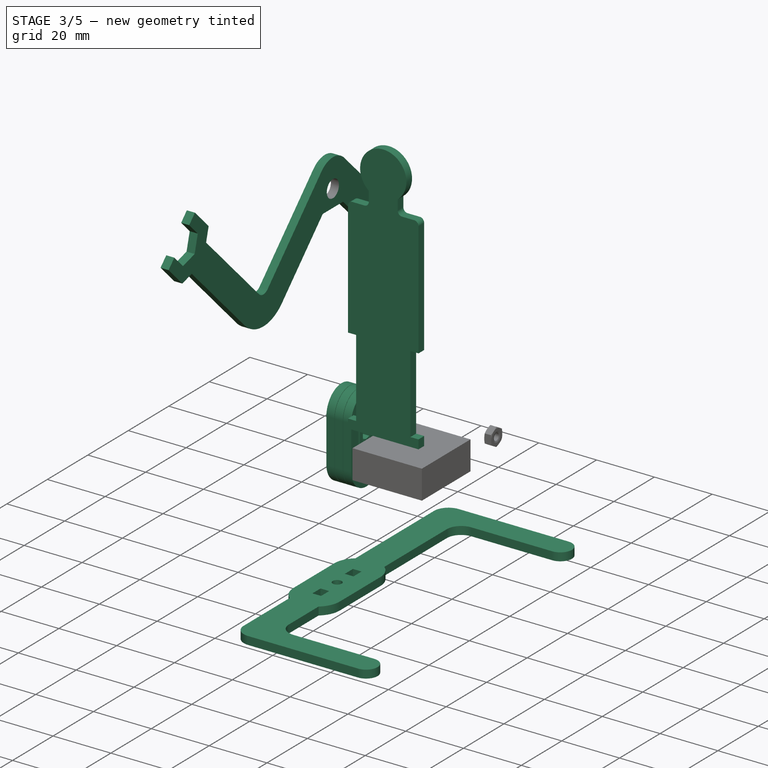
[diagram: stage 3 of 5 — iso view after this stage's code; geometry added in this stage tinted green]
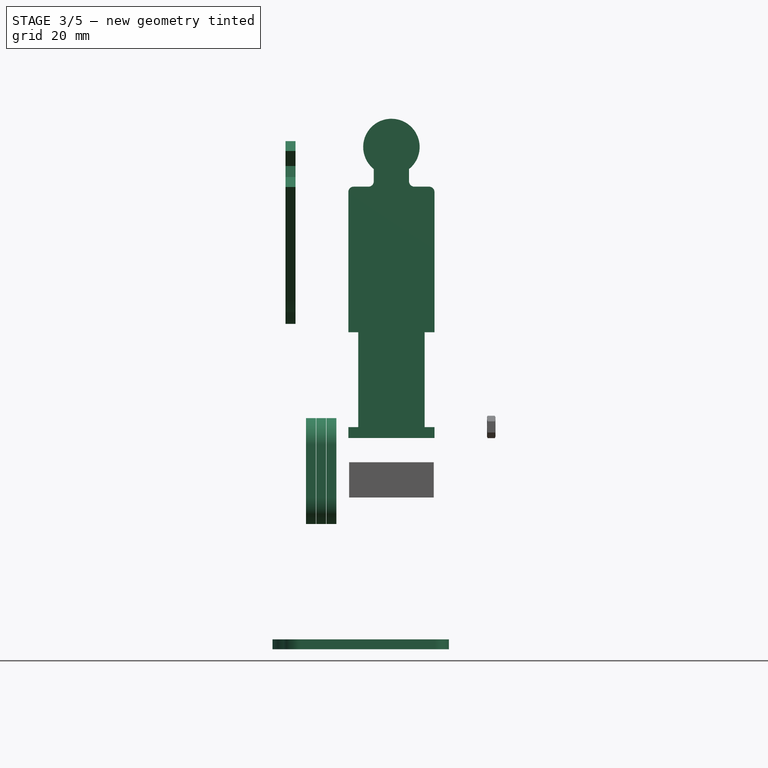
[diagram: stage 3 of 5 — front view after this stage's code; geometry added in this stage tinted green]
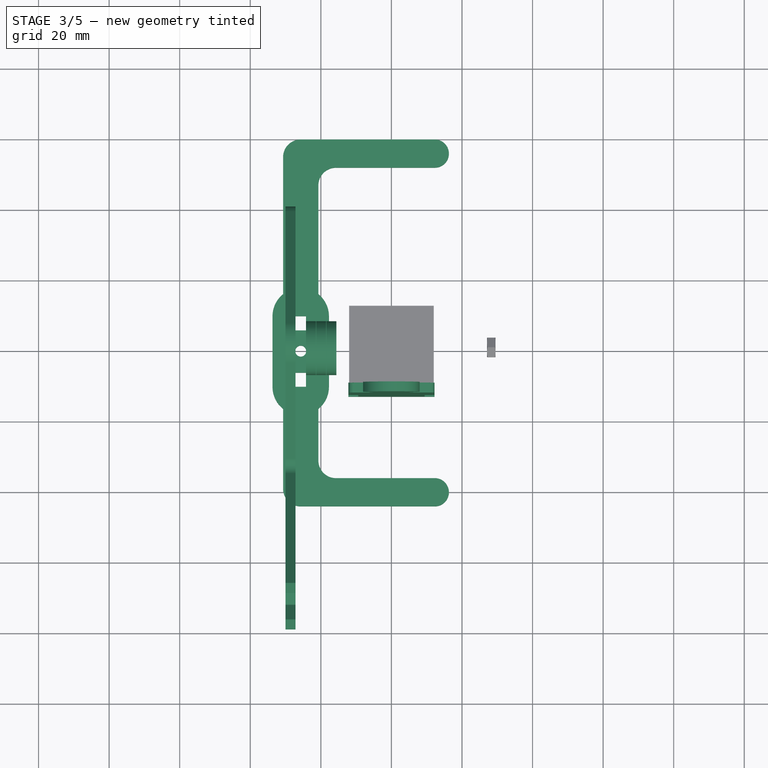
[diagram: stage 3 of 5 — top view after this stage's code; geometry added in this stage tinted green]
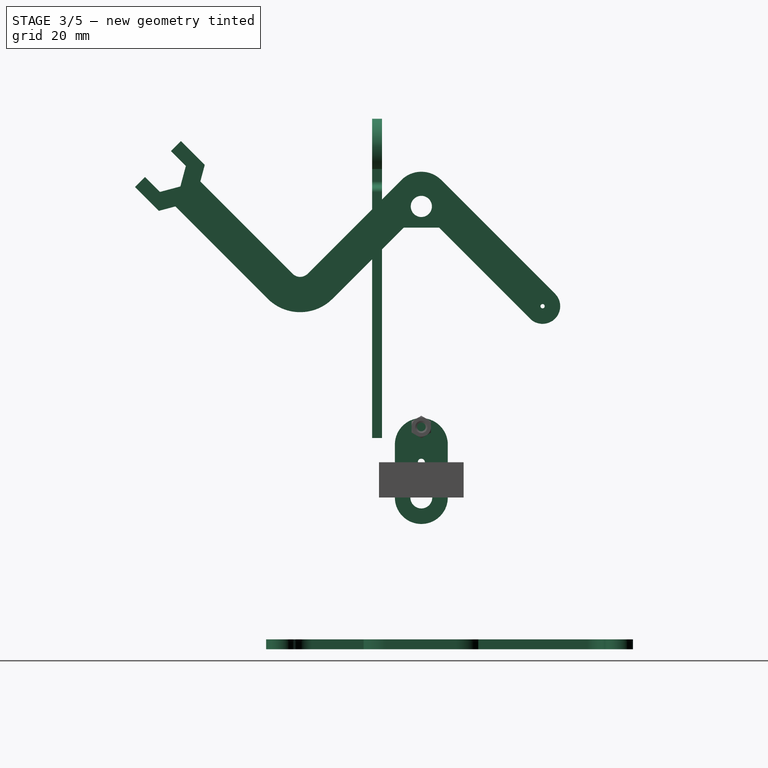
[diagram: stage 3 of 5 — right view after this stage's code; geometry added in this stage tinted green]
FEATURE [PartDesign::Body] Body005  label="spacer_right"
  Group = -> [Binder005,Sketch004,Pad005,Binder008]
  Origin = -> Origin006
  Tip = -> Pad005
FEATURE [PartDesign::SubShapeBinder] Binder009
  BindCopyOnChange = 0
  BindMode = 0
  ClaimChildren = false
  Context = -> Body007 [Binder009.]
  Fuse = false
  MakeFace = true
  OffsetFill = false
  OffsetIntersection = false
  OffsetJoinType = 0
  OffsetOpenResult = false
  PartialLoad = false
  Relative = true
  Support = -> [Body002[Pad004.]]
  _Version = 2
FEATURE [PartDesign::Plane] DatumPlane
  Length = 74.3266
  MapMode = 5
  Placement = pos=(-5.8e-15,-1.75e-14,-53) rot=(1,0,0;3.14159rad)
  ResizeMode = 0
  Support = -> [Binder009]
  Width = 119.627
FEATURE [Sketcher::SketchObject] Sketch006
  ExternalGeometry = -> [Binder009]
  FullyConstrained = true
  MapMode = 5
  Placement = pos=(-5.8e-15,-1.75e-14,-53) rot=(0,0,1;3.14159rad)
  Support = -> [DatumPlane]
  sketch-geometry (51):
    g0: LineSegment StartX=-12.3 StartY=40 StartZ=0 EndX=25.7 EndY=40 EndZ=0
    g1: LineSegment StartX=25.7 StartY=40 StartZ=0 EndX=25.7 EndY=0 EndZ=0
    g2: LineSegment StartX=25.7 StartY=0 StartZ=0 EndX=25.7 EndY=-56 EndZ=0
    g3: LineSegment StartX=25.7 StartY=-56 StartZ=0 EndX=-12.3 EndY=-56 EndZ=0
    g4: ArcOfCircle CenterX=-12.3 CenterY=40 CenterZ=0 NormalX=0 NormalY=0 NormalZ=1 AngleXU=0 Radius=4 StartAngle=1.5708 EndAngle=4.71239
    g5: ArcOfCircle CenterX=-12.3 CenterY=-56 CenterZ=0 NormalX=0 NormalY=0 NormalZ=1 AngleXU=0 Radius=4 StartAngle=1.5708 EndAngle=4.71239
    g6: LineSegment StartX=-12.3 StartY=44 StartZ=0 EndX=25.7 EndY=44 EndZ=0
    g7: LineSegment StartX=-12.3 StartY=36 StartZ=0 EndX=15.7 EndY=36 EndZ=0
    g8: LineSegment StartX=-12.3 StartY=-52 StartZ=0 EndX=15.7 EndY=-52 EndZ=0
    g9: LineSegment StartX=-12.3 StartY=-60 StartZ=0 EndX=25.7 EndY=-60 EndZ=0
    g10: ArcOfCircle CenterX=25.7 CenterY=10.1 CenterZ=0 NormalX=0 NormalY=0 NormalZ=1 AngleXU=0 Radius=8 StartAngle=0 EndAngle=0.895665
    g11: ArcOfCircle CenterX=25.7 CenterY=-9.9 CenterZ=0 NormalX=0 NormalY=0 NormalZ=1 AngleXU=0 Radius=8 StartAngle=3.14159 EndAngle=4.03726
    g12: LineSegment StartX=17.7 StartY=10.1 StartZ=0 EndX=17.7 EndY=-9.9 EndZ=0
    g13: LineSegment StartX=33.7 StartY=-9.9 StartZ=0 EndX=33.7 EndY=10.1 EndZ=0
    g14: LineSegment StartX=20.7 StartY=31 StartZ=0 EndX=20.7 EndY=16.345 EndZ=0
    g15: LineSegment StartX=30.7 StartY=16.345 StartZ=0 EndX=30.7 EndY=39 EndZ=0
    g16: ArcOfCircle CenterX=25.7 CenterY=39 CenterZ=0 NormalX=0 NormalY=0 NormalZ=1 AngleXU=0 Radius=5 StartAngle=0 EndAngle=1.5708
    g17: LineSegment StartX=20.7 StartY=-47 StartZ=0 EndX=20.7 EndY=-16.145 EndZ=0
    g18: LineSegment StartX=30.7 StartY=-16.145 StartZ=0 EndX=30.7 EndY=-55 EndZ=0
    g19: ArcOfCircle CenterX=25.7 CenterY=-55 CenterZ=0 NormalX=0 NormalY=0 NormalZ=1 AngleXU=0 Radius=5 StartAngle=4.71239 EndAngle=6.28319
    g20: ArcOfCircle CenterX=25.7 CenterY=-9.9 CenterZ=0 NormalX=0 NormalY=0 NormalZ=1 AngleXU=0 Radius=8 StartAngle=5.38752 EndAngle=6.28319
    g21: ArcOfCircle CenterX=25.7 CenterY=10.1 CenterZ=0 NormalX=0 NormalY=0 NormalZ=1 AngleXU=0 Radius=8 StartAngle=2.24593 EndAngle=3.14159
    g22: Circle CenterX=25.7 CenterY=0 CenterZ=0 NormalX=0 NormalY=0 NormalZ=1 AngleXU=0 Radius=1.55
    g23: LineSegment StartX=24.2 StartY=10.1 StartZ=0 EndX=27.2 EndY=10.1 EndZ=0
    g24: LineSegment StartX=27.2 StartY=10.1 StartZ=0 EndX=27.2 EndY=6.1 EndZ=0
    g25: LineSegment StartX=27.2 StartY=6.1 StartZ=0 EndX=24.2 EndY=6.1 EndZ=0
    g26: LineSegment StartX=24.2 StartY=6.1 StartZ=0 EndX=24.2 EndY=10.1 EndZ=0
    g27: LineSegment StartX=24.3 StartY=10 StartZ=0 EndX=24.3 EndY=10.1 EndZ=0
    g28: LineSegment StartX=24.3 StartY=10 StartZ=0 EndX=24.2 EndY=10 EndZ=0
    g29: LineSegment StartX=27.1 StartY=6 StartZ=0 EndX=27.2 EndY=6 EndZ=0
    g30: LineSegment StartX=27.1 StartY=6 StartZ=0 EndX=27.1 EndY=6.1 EndZ=0
    g31: LineSegment StartX=24.2 StartY=-5.9 StartZ=0 EndX=27.2 EndY=-5.9 EndZ=0
    g32: LineSegment StartX=27.2 StartY=-5.9 StartZ=0 EndX=27.2 EndY=-9.9 EndZ=0
    g33: LineSegment StartX=27.2 StartY=-9.9 StartZ=0 EndX=24.2 EndY=-9.9 EndZ=0
    g34: LineSegment StartX=24.2 StartY=-9.9 StartZ=0 EndX=24.2 EndY=-5.9 EndZ=0
    g35: LineSegment StartX=24.3 StartY=-6 StartZ=0 EndX=24.3 EndY=-5.9 EndZ=0
    g36: LineSegment StartX=24.3 StartY=-6 StartZ=0 EndX=24.2 EndY=-6 EndZ=0
    g37: LineSegment StartX=27.1 StartY=-10 StartZ=0 EndX=27.2 EndY=-10 EndZ=0
    g38: LineSegment StartX=27.1 StartY=-10 StartZ=0 EndX=27.1 EndY=-9.9 EndZ=0
    g39: ArcOfCircle CenterX=15.7 CenterY=-47 CenterZ=0 NormalX=0 NormalY=0 NormalZ=1 AngleXU=0 Radius=5 StartAngle=4.71239 EndAngle=6.28319
    g40: GeomPoint X=20.7 Y=-52 Z=0
    g41: ArcOfCircle CenterX=15.7 CenterY=31 CenterZ=0 NormalX=0 NormalY=0 NormalZ=1 AngleXU=0 Radius=5 StartAngle=0 EndAngle=1.5708
    g42: GeomPoint X=20.7 Y=36 Z=0
    g43: LineSegment StartX=24.2 StartY=10.1 StartZ=0 EndX=17.7 EndY=10.1 EndZ=0
    g44: LineSegment StartX=27.2 StartY=10.1 StartZ=0 EndX=33.7 EndY=10.1 EndZ=0
    g45: LineSegment StartX=24.2 StartY=-9.9 StartZ=0 EndX=17.7 EndY=-9.9 EndZ=0
    g46: LineSegment StartX=27.2 StartY=-9.9 StartZ=0 EndX=33.7 EndY=-9.9 EndZ=0
    g47: LineSegment StartX=24.3 StartY=1.25 StartZ=0 EndX=24.3 EndY=-1.25 EndZ=0
    g48: LineSegment StartX=27.1 StartY=1.25 StartZ=0 EndX=27.1 EndY=-1.25 EndZ=0
    g49: LineSegment StartX=24.3 StartY=1e-15 StartZ=0 EndX=25.7 EndY=0 EndZ=0
    g50: LineSegment StartX=25.7 StartY=0 StartZ=0 EndX=27.1 EndY=1e-15 EndZ=0
  constraints (133):
    c: Horizontal(g0)
    c: Coincident(g0,g1)
    c: Vertical(g1)
    c: Coincident(g1,g2)
    c: Vertical(g2)
    c: Coincident(g2,g3)
    c: Horizontal(g3)
    c: DistanceY(g2,g2) = 56
    c: Equal(g3,g0)
    c: DistanceX(g0,g0) = 38
    c: Coincident(g4,g0)
    c: Coincident(g5,g3)
    c: Equal(g5,g4)
    c: Diameter(g5) = 8
    c: Horizontal(g6)
    c: Horizontal(g7)
    c: Tangent(g4,g6) = 1.5708
    c: Tangent(g4,g7) = -1.5708
    c: Distance(g42,g1) = 5
    c: Horizontal(g8)
    c: Horizontal(g9)
    c: Tangent(g5,g8) = 1.5708
    c: Tangent(g5,g9) = -1.5708
    c: Equal(g6,g9)
    c: Tangent(g12,g11) = -1.5708
    c: Tangent(g13,g10) = -1.5708
    c: Equal(g10,g11)
    c: Diameter(g10) = 16
    c: Vertical(g14)
    c: PointOnObject(g6,g1)
    c: Vertical(g15)
    c: Tangent(g15,g16) = -1.5708
    c: Tangent(g16,g6) = 1.5708
    c: Distance(g15,g1) = 5
    c: Vertical(g17)
    c: Vertical(g18)
    c: Distance(g18,g2) = 5
    c: Tangent(g19,g9) = -1.5708
    c: Tangent(g19,g18) = 1.5708
    c: Equal(g11,g20)
    c: Coincident(g11,g17)
    c: Coincident(g20,g18)
    c: Coincident(g11,g20)
    c: Tangent(g20,g13) = -1.5708
    c: Equal(g10,g21)
    c: Coincident(g21,g14)
    c: Coincident(g10,g21)
    c: Coincident(g10,g15)
    c: Tangent(g21,g12) = -1.5708
    c: Coincident(g22,g1)
    c: Diameter(g22) = 3.1
    c: Coincident(g23,g24)
    c: Coincident(g24,g25)
    c: Coincident(g25,g26)
    c: Coincident(g26,g23)
    c: Coincident(g28,g27)
    c: Coincident(g30,g29)
    c: Equal(g28,g27)
    c: Equal(g27,g30)
    c: Equal(g30,g29)
    c: Coincident(g31,g32)
    c: Coincident(g32,g33)
    c: Coincident(g33,g34)
    c: Coincident(g34,g31)
    c: Coincident(g36,g35)
    c: Coincident(g38,g37)
    c: Coincident(g37,g-5)
    c: Coincident(g35,g-6)
    c: Coincident(g-4,g29)
    c: Coincident(g27,g-3)
    c: PointOnObject(g40,g8)
    c: PointOnObject(g40,g17)
    c: Tangent(g8,g39) = -1.5708
    c: Tangent(g17,g39) = -1.5708
    c: Radius(g39) = 5
    c: Symmetric(g11,g18,g2)
    c: PointOnObject(g42,g7)
    c: PointOnObject(g42,g14)
    c: Tangent(g7,g41) = 1.5708
    c: Tangent(g14,g41) = 1.5708
    c: Equal(g41,g39)
    c: DistanceY(g1,g1) = 40
    c: Distance(g27) = 0.1
    c: Perpendicular(g-3,g27)
    c: Perpendicular(g28,g27)
    c: PointOnObject(g28,g26)
    c: PointOnObject(g27,g23)
    c: Perpendicular(g28,g26)
    c: Perpendicular(g23,g27)
    c: Perpendicular(g-4,g30)
    c: Perpendicular(g29,g30)
    c: PointOnObject(g29,g24)
    c: PointOnObject(g30,g25)
    c: Perpendicular(g25,g30)
    c: Perpendicular(g29,g24)
    c: Perpendicular(g-5,g38)
    c: Perpendicular(g37,g38)
    c: Perpendicular(g35,g-6)
    c: Perpendicular(g36,g35)
    c: Equal(g35,g36)
    c: Equal(g36,g37)
    c: Equal(g37,g38)
    c: Equal(g38,g27)
    c: PointOnObject(g35,g31)
    c: PointOnObject(g36,g34)
    c: Perpendicular(g34,g36)
    c: Perpendicular(g31,g35)
    c: PointOnObject(g38,g33)
    c: PointOnObject(g37,g32)
    c: Perpendicular(g32,g37)
    c: Perpendicular(g33,g38)
    c: Coincident(g43,g23)
    c: Coincident(g43,g12)
    c: Coincident(g44,g23)
    c: Coincident(g44,g10)
    c: Perpendicular(g44,g24)
    c: Perpendicular(g43,g26)
    c: Coincident(g45,g33)
    c: Coincident(g45,g11)
    c: Coincident(g46,g32)
    c: Coincident(g46,g13)
    c: Perpendicular(g32,g46)
    c: Coincident(g47,g-8)
    c: Coincident(g47,g-7)
    c: Coincident(g48,g-8)
    c: Coincident(g48,g-7)
    c: Coincident(g50,g49)
    c: PointOnObject(g50,g48)
    c: Equal(g49,g50)
    c: Perpendicular(g49,g47)
    c: Perpendicular(g48,g50)
    c: Symmetric(g47,g47,g49)
    c: Coincident(g22,g49)
FEATURE [PartDesign::Pad] Pad006
  Direction = (-3e-16,2e-16,1)
  Length = 2.8
  Length2 = 10
  Placement = pos=(1.8e-14,-1.2e-14,-53) rot=(1,0,0;3.14159rad)
  Profile = -> Sketch006
  ReferenceAxis = -> Sketch006 [N_Axis]
  Type = 0
  expr: Length = Spreadsheet.acrylic_thin
FEATURE [PartDesign::Body] Body007  label="feet_right"
  Group = -> [Sketch006,Binder009,DatumPlane,Pad006]
  Origin = -> Origin009
  Tip = -> Pad006
FEATURE [PartDesign::FeatureBase] Clone
  BaseFeature = -> Body
FEATURE [PartDesign::Body] Body008  label="cam_left_1"
  Group = -> [Clone]
  Origin = -> Origin010
  Placement = pos=(0,0,0) rot=(0,1,0;3.14159rad)
  Tip = -> Clone
FEATURE [PartDesign::FeatureBase] Clone001
  BaseFeature = -> Body003
FEATURE [PartDesign::Body] Body009  label="cam_left_2"
  Group = -> [Clone001]
  Origin = -> Origin011
  Placement = pos=(0,0,0) rot=(0,1,0;3.14159rad)
  Tip = -> Clone001
FEATURE [PartDesign::FeatureBase] Clone002
  BaseFeature = -> Body004
FEATURE [PartDesign::Body] Body011  label="spacer_left"
  Group = -> [Clone003]
  Origin = -> Origin013
  Placement = pos=(0,0,0) rot=(0,1,0;3.14159rad)
  Tip = -> Clone003
FEATURE [PartDesign::FeatureBase] Clone007
  BaseFeature = -> Body007
FEATURE [PartDesign::Body] Body017  label="body_right"
  Group = -> [Sketch007,Binder010,Binder011,Binder012,Pad007]
  Origin = -> Origin019
  Tip = -> Pad007
FEATURE [Part::Feature] Part__Feature  label="batt_9V005_cp_sp"
  shape: bbox 13.59 x 26.29 x 1.575 mm, 21 faces (baked)
FEATURE [Part::Feature] Part__Feature003  label="batt_9V005_cp_sp003"
  shape: bbox 7.925 x 7.925 x 3.557 mm, 27 faces (baked)
FEATURE [Part::Feature] Part__Feature004  label="batt_9V005_cp_sp004"
  shape: bbox 9.35 x 9.35 x 4.186 mm, 125 faces (baked)
FEATURE [Part::Feature] Part__Feature005  label="batt_9V005_cp_sp005"
  shape: bbox 15.74 x 25.33 x 0.8457 mm, 1 faces, 0 solids (baked)
FEATURE [Part::Feature] Part__Feature006  label="batt_9V005_cp_sp006"
  shape: bbox 15.38 x 24.78 x 2e-07 mm, 1 faces, 0 solids (baked)
FEATURE [Part::Feature] Part__Feature007  label="batt_9V005_cp_sp007"
  shape: bbox 16.6 x 26 x 42.82 mm, 188 faces, 0 solids (baked)
FEATURE [Part::Feature] Part__Feature008  label="batt_9V005_cp_sp008"
  shape: bbox 7.6 x 8.776 x 3 mm, 28 faces, 0 solids (baked)
FEATURE [Part::Feature] Part__Feature009  label="batt_9V005_cp_sp009"
  shape: bbox 6.35 x 6.35 x 1.5 mm, 2 faces, 0 solids (baked)
FEATURE [Part::Feature] Part__Feature010  label="batt_9V005_cp_sp010"
  shape: bbox 8 x 8 x 3.2 mm, 10 faces, 0 solids (baked)
FEATURE [App::Part] batt_9V005_cp_sp  label="batt_9V005_cp_sp011"
  Group = -> [Part__Feature,Part__Feature003,Part__Feature004,Part__Feature005,Part__Feature006,Part__Feature007,Part__Feature008,Part__Feature009,Part__Feature010]
  Origin = -> Origin020
  Placement = pos=(0,25,40) rot=(0,0,1;0rad)
FEATURE [PartDesign::FeatureBase] Clone008
  BaseFeature = -> Body017
FEATURE [PartDesign::SubShapeBinder] Binder017
  BindCopyOnChange = 0
  BindMode = 0
  ClaimChildren = false
  Context = -> Body022 [Binder017.]
  Fuse = false
  MakeFace = true
  OffsetFill = false
  OffsetIntersection = false
  OffsetJoinType = 0
  OffsetOpenResult = false
  PartialLoad = false
  Relative = true
  Support = -> [Body017]
  _Version = 2
FEATURE [PartDesign::SubShapeBinder] Binder018
  BindCopyOnChange = 0
  BindMode = 0
  ClaimChildren = false
  Context = -> Body022 [Binder018.]
  Fuse = false
  MakeFace = true
  OffsetFill = false
  OffsetIntersection = false
  OffsetJoinType = 0
  OffsetOpenResult = false
  PartialLoad = false
  Relative = true
  Support = -> [Body018]
  _Version = 2
FEATURE [PartDesign::SubShapeBinder] Binder019
  BindCopyOnChange = 0
  BindMode = 0
  ClaimChildren = false
  Context = -> Body022 [Binder019.]
  Fuse = false
  MakeFace = true
  OffsetFill = false
  OffsetIntersection = false
  OffsetJoinType = 0
  OffsetOpenResult = false
  PartialLoad = false
  Relative = true
  Support = -> [Part001]
  _Version = 2
FEATURE [Sketcher::SketchObject] Sketch011
  ExternalGeometry = -> [Binder017,Binder018]
  FullyConstrained = true
  MapMode = 5
  Placement = pos=(0,-11.15,0) rot=(1,0,0;1.5708rad)
  Support = -> [Binder019]
  expr: Constraints[24] = Spreadsheet.acrylic_thin - 0.3
  expr: Constraints[25] = Spreadsheet.acrylic_thin + 0.3
  sketch-geometry (21):
    g0: LineSegment StartX=-9.4 StartY=36.85 StartZ=0 EndX=-12.2 EndY=36.85 EndZ=0
    g1: LineSegment StartX=-12.2 StartY=36.85 StartZ=0 EndX=-12.2 EndY=76.6 EndZ=0
    g2: ArcOfCircle CenterX=-10.7 CenterY=76.6 CenterZ=0 NormalX=0 NormalY=0 NormalZ=1 AngleXU=0 Radius=1.5 StartAngle=1.5708 EndAngle=3.14159
    g3: LineSegment StartX=-5 StartY=79.6 StartZ=0 EndX=-5 EndY=83.1 EndZ=0
    g4: ArcOfCircle CenterX=0 CenterY=89.345 CenterZ=0 NormalX=0 NormalY=0 NormalZ=1 AngleXU=0 Radius=8 StartAngle=5.38752 EndAngle=10.3204
    g5: LineSegment StartX=-9.4 StartY=36.85 StartZ=0 EndX=-9.4 EndY=9.95 EndZ=0
    g6: LineSegment StartX=-9.4 StartY=9.95 StartZ=0 EndX=-12.2 EndY=9.95 EndZ=0
    g7: LineSegment StartX=-12.2 StartY=9.95 StartZ=0 EndX=-12.2 EndY=6.85 EndZ=0
    g8: LineSegment StartX=-12.2 StartY=6.85 StartZ=0 EndX=0 EndY=6.85 EndZ=0
    g9: LineSegment StartX=-10.7 StartY=78.1 StartZ=0 EndX=-6.5 EndY=78.1 EndZ=0
    g10: ArcOfCircle CenterX=-6.5 CenterY=79.6 CenterZ=0 NormalX=0 NormalY=0 NormalZ=1 AngleXU=0 Radius=1.5 StartAngle=4.71239 EndAngle=6.28319
    g11: LineSegment StartX=12.2 StartY=9.95 StartZ=0 EndX=9.4 EndY=9.95 EndZ=0
    g12: LineSegment StartX=9.4 StartY=9.95 StartZ=0 EndX=9.4 EndY=36.85 EndZ=0
    g13: LineSegment StartX=9.4 StartY=36.85 StartZ=0 EndX=12.2 EndY=36.85 EndZ=0
    g14: LineSegment StartX=12.2 StartY=36.85 StartZ=0 EndX=12.2 EndY=76.6 EndZ=0
    g15: ArcOfCircle CenterX=10.7 CenterY=76.6 CenterZ=0 NormalX=0 NormalY=0 NormalZ=1 AngleXU=0 Radius=1.5 StartAngle=-4.4e-15 EndAngle=1.5708
    g16: LineSegment StartX=10.7 StartY=78.1 StartZ=0 EndX=6.5 EndY=78.1 EndZ=0
    g17: ArcOfCircle CenterX=6.5 CenterY=79.6 CenterZ=0 NormalX=0 NormalY=0 NormalZ=1 AngleXU=0 Radius=1.5 StartAngle=3.14159 EndAngle=4.71239
    g18: LineSegment StartX=5 StartY=79.6 StartZ=0 EndX=5 EndY=83.1 EndZ=0
    g19: LineSegment StartX=12.2 StartY=9.95 StartZ=0 EndX=12.2 EndY=6.85 EndZ=0
    g20: LineSegment StartX=12.2 StartY=6.85 StartZ=0 EndX=0 EndY=6.85 EndZ=0
  constraints (56):
    c: Coincident(g-3,g0)
    c: Coincident(g0,g-3)
    c: Coincident(g0,g1)
    c: Vertical(g1)
    c: Tangent(g1,g2) = 1.5708
    c: Vertical(g3)
    c: Coincident(g0,g5)
    c: Vertical(g5)
    c: Coincident(g5,g6)
    c: Horizontal(g6)
    c: Coincident(g6,g7)
    c: Vertical(g7)
    c: Coincident(g7,g8)
    c: Horizontal(g8)
    c: Radius(g2) = 1.5
    c: Angle(g2) = 1.5708
    c: Coincident(g4,g3)
    c: DistanceX(g-2,g3) = -5
    c: DistanceY(g3,g3) = 3.5
    c: Tangent(g2,g9) = 1.5708
    c: Tangent(g9,g10) = -1.5708
    c: Tangent(g10,g3) = -1.5708
    c: Equal(g10,g2)
    c: Equal(g0,g6)
    c: DistanceY(g6,g-5) = 2.5
    c: DistanceY(g7,g7) = 3.1
    c: PointOnObject(g8,g-2)
    c: Horizontal(g11)
    c: Coincident(g11,g12)
    c: Coincident(g12,g-4)
    c: Vertical(g12)
    c: Coincident(g12,g13)
    c: Coincident(g13,g-4)
    c: Coincident(g13,g14)
    c: Vertical(g14)
    c: Tangent(g14,g15) = -1.5708
    c: Horizontal(g16)
    c: Tangent(g16,g17) = 1.5708
    c: Vertical(g18)
    c: Tangent(g15,g16) = -1.5708
    c: Equal(g15,g17)
    c: Equal(g17,g2)
    c: Tangent(g17,g18) = 1.5708
    c: Equal(g14,g1)
    c: Equal(g16,g9)
    c: Equal(g12,g5)
    c: Equal(g11,g6)
    c: Coincident(g11,g19)
    c: Vertical(g19)
    c: Coincident(g19,g20)
    c: Coincident(g20,g8)
    c: Horizontal(g20)
    c: Coincident(g18,g4)
    c: PointOnObject(g4,g-2)
    c: Diameter(g4) = 16
    c: PointOnObject(g-9,g9)
FEATURE [PartDesign::Pad] Pad011
  Direction = (-2e-16,-1,2e-16)
  Length = 2.8
  Length2 = 10
  Profile = -> Sketch011
  ReferenceAxis = -> Sketch011 [N_Axis]
  Type = 0
  expr: Length = Spreadsheet.acrylic_thin
FEATURE [PartDesign::Body] Body022  label="trunk"
  Group = -> [Binder017,Binder018,Binder019,Sketch011,Pad011]
  Origin = -> Origin025
  Tip = -> Pad011
FEATURE [PartDesign::SubShapeBinder] Binder020
  BindCopyOnChange = 0
  BindMode = 0
  ClaimChildren = false
  Context = -> Body023 [Binder020.]
  Fuse = false
  MakeFace = true
  OffsetFill = false
  OffsetIntersection = false
  OffsetJoinType = 0
  OffsetOpenResult = false
  PartialLoad = false
  Relative = true
  Support = -> [Body020]
  _Version = 2
FEATURE [PartDesign::SubShapeBinder] Binder021
  BindCopyOnChange = 0
  BindMode = 0
  ClaimChildren = false
  Context = -> Body023 [Binder021.]
  Fuse = false
  MakeFace = true
  OffsetFill = false
  OffsetIntersection = false
  OffsetJoinType = 0
  OffsetOpenResult = false
  PartialLoad = false
  Relative = true
  Support = -> [Body002]
  _Version = 2
FEATURE [PartDesign::Plane] DatumPlane004
  AttachmentOffset = pos=(0,0,0.1) rot=(0,0,1;0rad)
  Length = 144.161
  MapMode = 5
  Placement = pos=(-27.2,7.1e-15,-1.5e-14) rot=(-0.57735,0.57735,0.57735;4.18879rad)
  ResizeMode = 0
  Support = -> [Binder021]
  Width = 139.673
FEATURE [Sketcher::SketchObject] Sketch012
  ExternalGeometry = -> [Binder020,Binder021]
  FullyConstrained = true
  MapMode = 5
  Placement = pos=(-27.2,7.1e-15,-1.5e-14) rot=(-0.57735,0.57735,0.57735;4.18879rad)
  Support = -> [DatumPlane004]
  expr: Constraints[39] = Spreadsheet.angle
  sketch-geometry (34):
    g0: LineSegment StartX=-37.8909 StartY=47.7513 StartZ=0 EndX=-5.65685 EndY=79.9853 EndZ=0
    g1: LineSegment StartX=5.65685 StartY=79.9853 StartZ=0 EndX=32.234 EndY=53.4081 EndZ=0
    g2: LineSegment StartX=36.4767 StartY=53.4081 StartZ=0 EndX=62.6396 EndY=79.5711 EndZ=0
    g3: LineSegment StartX=62.6396 StartY=79.5711 StartZ=0 EndX=69.7107 EndY=72.5 EndZ=0
    g4: LineSegment StartX=69.7107 StartY=72.5 StartZ=0 EndX=43.5477 EndY=46.337 EndZ=0
    g5: LineSegment StartX=25.163 StartY=46.337 StartZ=0 EndX=5 EndY=66.5 EndZ=0
    g6: LineSegment StartX=-5 StartY=66.5 StartZ=0 EndX=-30.8198 EndY=40.6802 EndZ=0
    g7: ArcOfCircle CenterX=-34.3553 CenterY=44.2157 CenterZ=0 NormalX=0 NormalY=0 NormalZ=1 AngleXU=0 Radius=5 StartAngle=2.35619 EndAngle=5.49779
    g8: ArcOfCircle CenterX=34.3553 CenterY=55.5294 CenterZ=0 NormalX=0 NormalY=0 NormalZ=1 AngleXU=0 Radius=3 StartAngle=3.92699 EndAngle=5.49779
    g9: LineSegment StartX=-37.8909 StartY=47.7513 StartZ=0 EndX=-30.8198 EndY=40.6802 EndZ=0
    g10: LineSegment StartX=-5 StartY=66.5 StartZ=0 EndX=5 EndY=66.5 EndZ=0
    g11: ArcOfCircle CenterX=34.3553 CenterY=55.5294 CenterZ=0 NormalX=0 NormalY=0 NormalZ=1 AngleXU=0 Radius=13 StartAngle=3.92699 EndAngle=5.49779
    g12: LineSegment StartX=-34.3553 StartY=44.2157 StartZ=0 EndX=-6.07107 EndY=72.5 EndZ=0
    g13: LineSegment StartX=6.07107 StartY=72.5 StartZ=0 EndX=34.3553 EndY=44.2157 EndZ=0
    g14: LineSegment StartX=34.3553 StartY=44.2157 StartZ=0 EndX=66.1751 EndY=76.0355 EndZ=0
    g15: LineSegment StartX=-6.07107 StartY=72.5 StartZ=0 EndX=6.07107 EndY=72.5 EndZ=0
    g16: LineSegment StartX=-2.11e-14 StartY=72.5 StartZ=0 EndX=-2.22e-14 EndY=66.5 EndZ=0
    g17: Circle CenterX=-2.11e-14 CenterY=72.5 CenterZ=0 NormalX=0 NormalY=0 NormalZ=1 AngleXU=0 Radius=3
    g18: ArcOfCircle CenterX=-2.36e-14 CenterY=74.3284 CenterZ=0 NormalX=0 NormalY=0 NormalZ=1 AngleXU=0 Radius=8 StartAngle=0.785398 EndAngle=2.35619
    g19: LineSegment StartX=74.092 StartY=76.6039 StartZ=0 EndX=78.3347 EndY=80.8466 EndZ=0
    g20: LineSegment StartX=78.3347 StartY=80.8466 StartZ=0 EndX=76.7817 EndY=86.6421 EndZ=0
    g21: LineSegment StartX=76.7817 StartY=86.6421 StartZ=0 EndX=70.9862 EndY=88.195 EndZ=0
    g22: LineSegment StartX=70.9862 StartY=88.195 StartZ=0 EndX=66.7436 EndY=83.9524 EndZ=0
    g23: LineSegment StartX=66.7436 StartY=83.9524 StartZ=0 EndX=68.2965 EndY=78.1569 EndZ=0
    g24: LineSegment StartX=68.2965 StartY=78.1569 StartZ=0 EndX=74.092 EndY=76.6039 EndZ=0
    g25: Circle CenterX=72.5391 CenterY=82.3995 CenterZ=0 NormalX=0 NormalY=0 NormalZ=1 AngleXU=0 Radius=6
    g26: LineSegment StartX=66.1751 StartY=76.0355 StartZ=0 EndX=68.2965 EndY=78.1569 EndZ=0
    g27: LineSegment StartX=70.9862 StartY=88.195 StartZ=0 EndX=68.1578 EndY=91.0235 EndZ=0
    g28: LineSegment StartX=68.1578 StartY=91.0235 StartZ=0 EndX=61.3856 EndY=84.2513 EndZ=0
    g29: LineSegment StartX=61.3856 StartY=84.2513 StartZ=0 EndX=62.6396 EndY=79.5711 EndZ=0
    g30: LineSegment StartX=69.7107 StartY=72.5 StartZ=0 EndX=74.3909 EndY=71.2459 EndZ=0
    g31: LineSegment StartX=74.3909 StartY=71.2459 StartZ=0 EndX=81.1631 EndY=78.0182 EndZ=0
    g32: LineSegment StartX=81.1631 StartY=78.0182 StartZ=0 EndX=78.3347 EndY=80.8466 EndZ=0
    g33: Circle CenterX=-34.3553 CenterY=44.2157 CenterZ=0 NormalX=0 NormalY=0 NormalZ=1 AngleXU=0 Radius=0.6
  constraints (84):
    c: Coincident(g2,g3)
    c: Coincident(g3,g4)
    c: Tangent(g6,g7) = 1.5708
    c: Tangent(g1,g8) = -1.5708
    c: Tangent(g2,g8) = -1.5708
    c: Perpendicular(g2,g3)
    c: Perpendicular(g4,g3)
    c: Perpendicular(g5,g4)
    c: Perpendicular(g2,g1)
    c: Tangent(g7,g0) = 1.5708
    c: Perpendicular(g5,g6)
    c: Angle(g7) = 3.14159
    c: Coincident(g9,g0)
    c: Coincident(g9,g6)
    c: Distance(g9) = 10
    c: Coincident(g10,g6)
    c: Coincident(g10,g5)
    c: Tangent(g11,g5) = 1.5708
    c: Tangent(g11,g4) = 1.5708
    c: Coincident(g11,g8)
    c: Symmetric(g2,g3,g14)
    c: Perpendicular(g14,g3)
    c: Coincident(g14,g13)
    c: Distance(g14) = 45
    c: Perpendicular(g13,g14)
    c: Perpendicular(g12,g13)
    c: Coincident(g12,g7)
    c: Angle(g10,g5) = 2.35619
    c: Coincident(g12,g15)
    c: Coincident(g13,g15)
    c: Perpendicular(g16,g10)
    c: Perpendicular(g16,g15)
    c: Symmetric(g6,g5,g16)
    c: Symmetric(g12,g13,g16)
    c: Coincident(g16,g-3)
    c: Equal(g12,g13)
    c: Distance(g12) = 40
    c: Coincident(g17,g16)
    c: Equal(g17,g-3)
    c: Angle(g16) = 4.71239
    c: Tangent(g18,g1) = 1.5708
    c: Tangent(g18,g0) = 1.5708
    c: Equal(g3,g9)
    c: Coincident(g19,g20)
    c: Coincident(g20,g21)
    c: Coincident(g21,g22)
    c: Coincident(g22,g23)
    c: Coincident(g23,g24)
    c: Coincident(g24,g19)
    c: Equal(g19, g20-g24) x5
    c: PointOnObject(g19,g25)
    c: PointOnObject(g20,g25)
    c: PointOnObject(g21,g25)
    c: PointOnObject(g22,g25)
    c: PointOnObject(g23,g25)
    c: PointOnObject(g24,g25)
    c: Parallel(g22,g14)
    c: Coincident(g26,g14)
    c: Coincident(g26,g23)
    c: Perpendicular(g3,g26)
    c: Distance(g23) = 6
    c: Distance(g26) = 3
    c: Coincident(g22,g27)
    c: Coincident(g27,g28)
    c: Coincident(g28,g29)
    c: Coincident(g29,g2)
    c: Coincident(g4,g30)
    c: Coincident(g30,g31)
    c: Coincident(g31,g32)
    c: Coincident(g32,g19)
    c: Equal(g27,g32)
    c: Perpendicular(g22,g27)
    c: Perpendicular(g32,g19)
    c: Distance(g27) = 4
    c: Perpendicular(g28,g27)
    c: Perpendicular(g31,g32)
    c: Parallel(g24,g30)
    c: Parallel(g29,g23)
    c: Distance(g10) = 10
    c: Distance(g16) = 6
    c: Radius(g18) = 8
    c: Radius(g8) = 3
    c: Coincident(g33,g7)
    c: Diameter(g33) = 1.2
FEATURE [PartDesign::Pad] Pad012
  Direction = (-1,0,-4e-16)
  Length = 2.8
  Length2 = 10
  Placement = pos=(-27.2,-5e-15,-1.5e-14) rot=(0.57735,-0.57735,-0.57735;2.0944rad)
  Profile = -> Sketch012
  ReferenceAxis = -> Sketch012 [N_Axis]
  Type = 0
  expr: Length = Spreadsheet.acrylic_thin
FEATURE [PartDesign::Body] Body023  label="hand_right"
  Group = -> [Binder020,Binder021,DatumPlane004,Sketch012,Pad012]
  Origin = -> Origin026
  Tip = -> Pad012
FEATURE [PartDesign::FeatureBase] Clone010
  BaseFeature = -> Body023
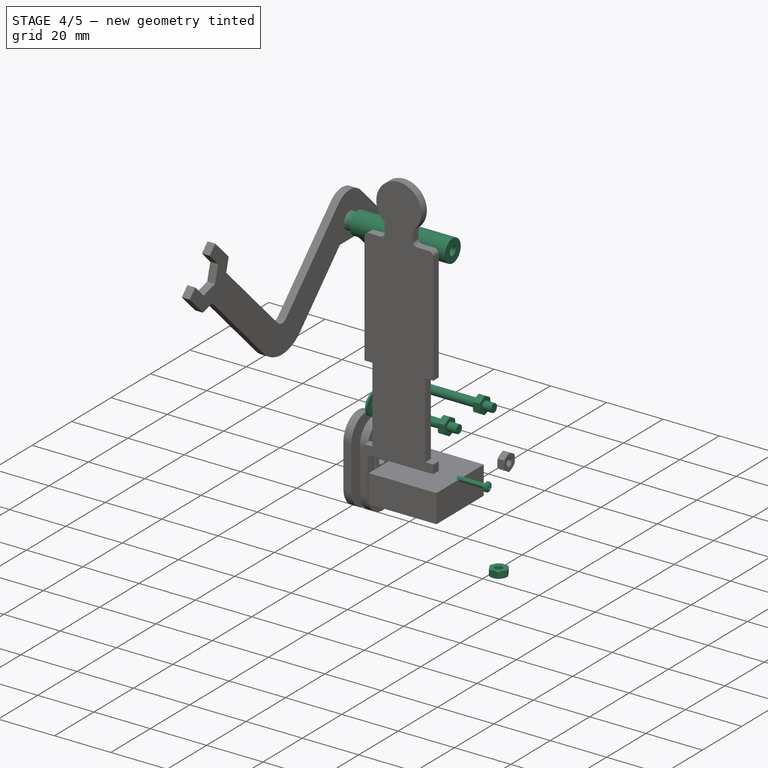
[diagram: stage 4 of 5 — iso view after this stage's code; geometry added in this stage tinted green]
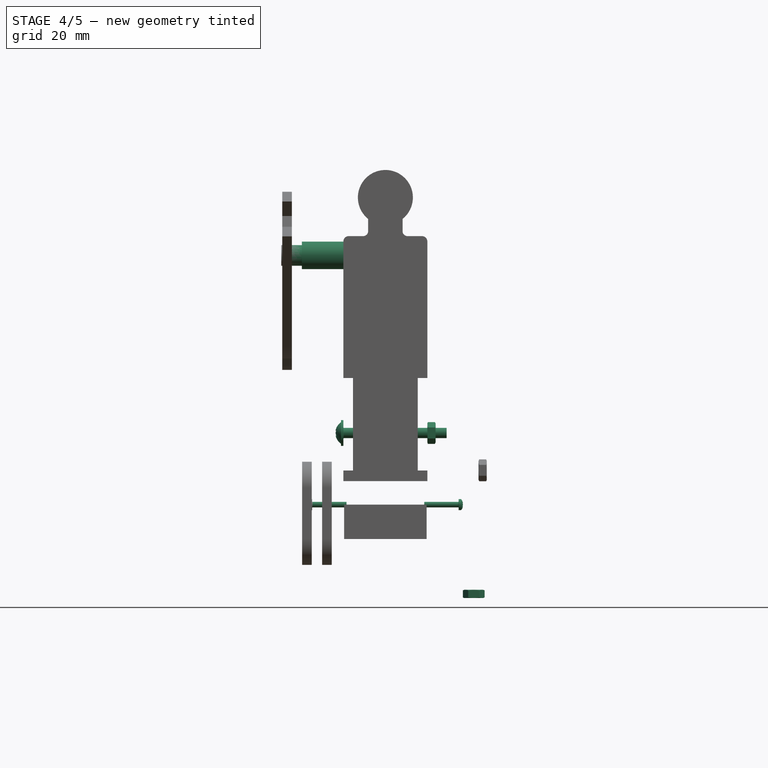
[diagram: stage 4 of 5 — front view after this stage's code; geometry added in this stage tinted green]
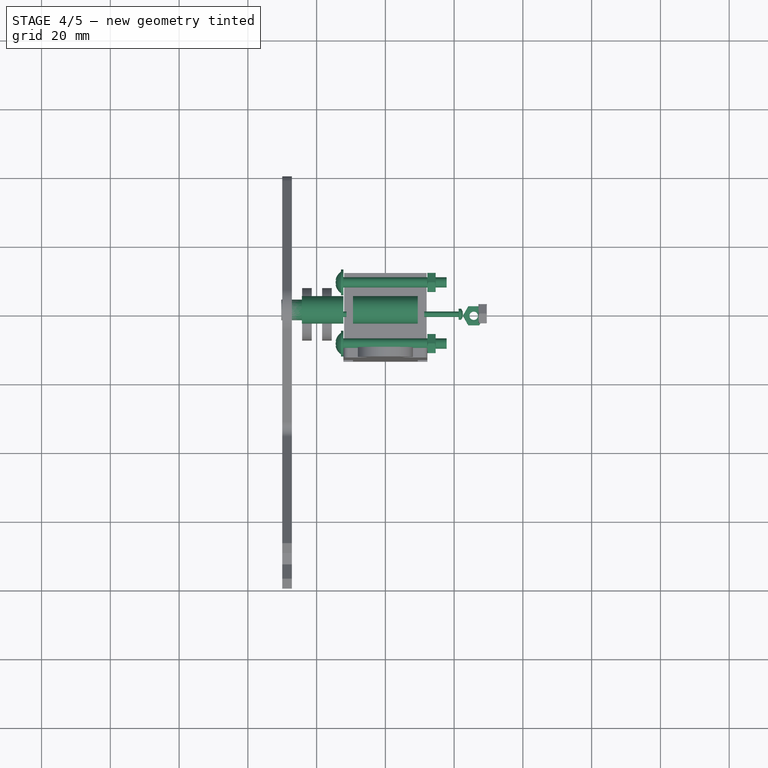
[diagram: stage 4 of 5 — top view after this stage's code; geometry added in this stage tinted green]
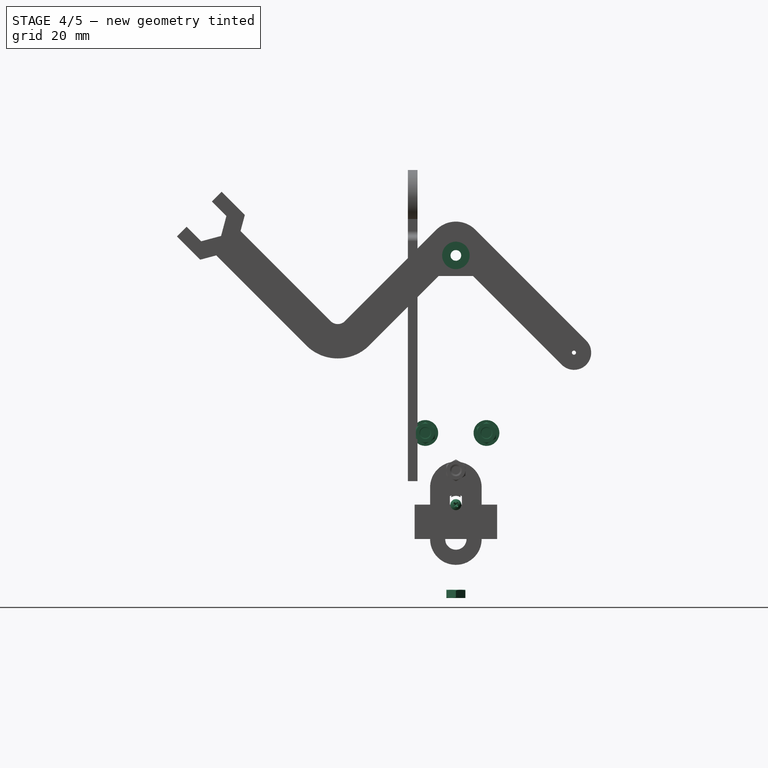
[diagram: stage 4 of 5 — right view after this stage's code; geometry added in this stage tinted green]
FEATURE [PartDesign::Body] Body018  label="body_left"
  Group = -> [Clone008]
  Origin = -> Origin021
  Placement = pos=(21.6,0,0) rot=(0,0,1;0rad)
  Tip = -> Clone008
FEATURE [PartDesign::SubShapeBinder] Binder013
  BindCopyOnChange = 0
  BindMode = 0
  ClaimChildren = false
  Context = -> Body019 [Binder013.]
  Fuse = false
  MakeFace = true
  OffsetFill = false
  OffsetIntersection = false
  OffsetJoinType = 0
  OffsetOpenResult = false
  PartialLoad = false
  Relative = true
  Support = -> [Body017]
  _Version = 2
FEATURE [PartDesign::SubShapeBinder] Binder014
  BindCopyOnChange = 0
  BindMode = 0
  ClaimChildren = false
  Context = -> Body019 [Binder014.]
  Fuse = false
  MakeFace = true
  OffsetFill = false
  OffsetIntersection = false
  OffsetJoinType = 0
  OffsetOpenResult = false
  PartialLoad = false
  Relative = true
  Support = -> [Body018]
  _Version = 2
FEATURE [Sketcher::SketchObject] Sketch008
  ExternalGeometry = -> [Binder014]
  FullyConstrained = true
  MapMode = 5
  Placement = pos=(0,0,0) rot=(0.57735,0.57735,0.57735;2.0944rad)
  Support = -> [YZ_Plane020]
  sketch-geometry (2):
    g0: Circle CenterX=5e-16 CenterY=72.5 CenterZ=0 NormalX=0 NormalY=0 NormalZ=1 AngleXU=0 Radius=1.55
    g1: Circle CenterX=5e-16 CenterY=72.5 CenterZ=0 NormalX=0 NormalY=0 NormalZ=1 AngleXU=0 Radius=4
  constraints (4):
    c: Coincident(g0,g-3)
    c: Coincident(g1,g0)
    c: Equal(g0,g-3)
    c: Diameter(g1) = 8
FEATURE [PartDesign::Pad] Pad008
  Direction = (1,-2e-16,3e-16)
  Length = 18.8
  Length2 = 10
  Midplane = true
  Placement = pos=(0,0,0) rot=(0.57735,0.57735,0.57735;2.0944rad)
  Profile = -> Sketch008
  ReferenceAxis = -> Sketch008 [N_Axis]
  Type = 0
FEATURE [PartDesign::Body] Body020  label="spacer_top_right"
  Group = -> [Binder015,Binder016,Sketch009,Pad009,Sketch010,Pad010]
  Origin = -> Origin023
  Tip = -> Pad010
FEATURE [PartDesign::FeatureBase] Clone009
  BaseFeature = -> Body020
FEATURE [Part::FeaturePython] Screw001  label="M1.6x10-Screw"  # Fasteners workbench fastener (typed FeaturePython)
  Placement = pos=(-21.3,5e-15,-5e-15) rot=(0,-1,0;1.5708rad)
  baseObject = -> Body003 [Edge18]
  diameter = 1
  invert = false
  leftHanded = false
  length = 5
  lengthCustom = 10
  matchOuter = false
  offset = 0
  thread = false
  type = 49
FEATURE [Part::FeaturePython] Screw002  label="M1.6x10-Screw001"  # Fasteners workbench fastener (typed FeaturePython)
  Placement = pos=(21.3,6e-15,7e-15) rot=(0,1,0;1.5708rad)
  baseObject = -> Body009 [Edge18]
  diameter = 1
  invert = false
  leftHanded = false
  length = 5
  lengthCustom = 10
  matchOuter = false
  offset = 0
  thread = false
  type = 49
FEATURE [Part::FeaturePython] Screw004  label="M3x10-Screw001"  # Fasteners workbench fastener (typed FeaturePython)
  Placement = pos=(25.7,-1.1e-14,-33) rot=(-0.694642,0.719355,0;3.14159rad)
  baseObject = -> Body015 [Edge87]
  diameter = 1
  invert = false
  leftHanded = false
  length = 4
  lengthCustom = 10
  matchOuter = false
  offset = 0
  thread = false
  type = 25
FEATURE [Part::FeaturePython] Nut004  label="M3-Nut062"  # Fasteners workbench fastener (typed FeaturePython)
  Placement = pos=(25.7,-1.2e-14,-24.75) rot=(1,0,0;3.14159rad)
  baseObject = -> Screw004 [Edge71]
  diameter = 4
  invert = false
  leftHanded = false
  matchOuter = false
  offset = 1.75
  thread = false
  type = 25
FEATURE [Part::FeaturePython] Screw005  label="M3x30-Screw"  # Fasteners workbench fastener (typed FeaturePython)
  Placement = pos=(-12.2,-8.9,20.85) rot=(0,-1,0;1.5708rad)
  baseObject = -> Body017 [Edge105]
  diameter = 1
  invert = false
  leftHanded = false
  length = 10
  lengthCustom = 30
  matchOuter = false
  offset = 0
  thread = false
  type = 25
FEATURE [Part::FeaturePython] Nut005  label="M3-Nut063"  # Fasteners workbench fastener (typed FeaturePython)
  Placement = pos=(12.2,-8.9,20.85) rot=(0,1,0;1.5708rad)
  baseObject = -> Body018 [Edge104]
  diameter = 4
  invert = true
  leftHanded = false
  matchOuter = false
  offset = 0
  thread = false
  type = 25
FEATURE [Part::FeaturePython] Screw006  label="M3x30-Screw001"  # Fasteners workbench fastener (typed FeaturePython)
  Placement = pos=(-12.2,8.9,20.85) rot=(0,-1,0;1.5708rad)
  baseObject = -> Body017 [Edge108]
  diameter = 1
  invert = false
  leftHanded = false
  length = 10
  lengthCustom = 30
  matchOuter = false
  offset = 0
  thread = false
  type = 25
FEATURE [Part::FeaturePython] Nut006  label="M3-Nut064"  # Fasteners workbench fastener (typed FeaturePython)
  Placement = pos=(12.2,8.9,20.85) rot=(0,1,0;1.5708rad)
  baseObject = -> Body018 [Edge107]
  diameter = 4
  invert = true
  leftHanded = false
  matchOuter = false
  offset = 0
  thread = false
  type = 25
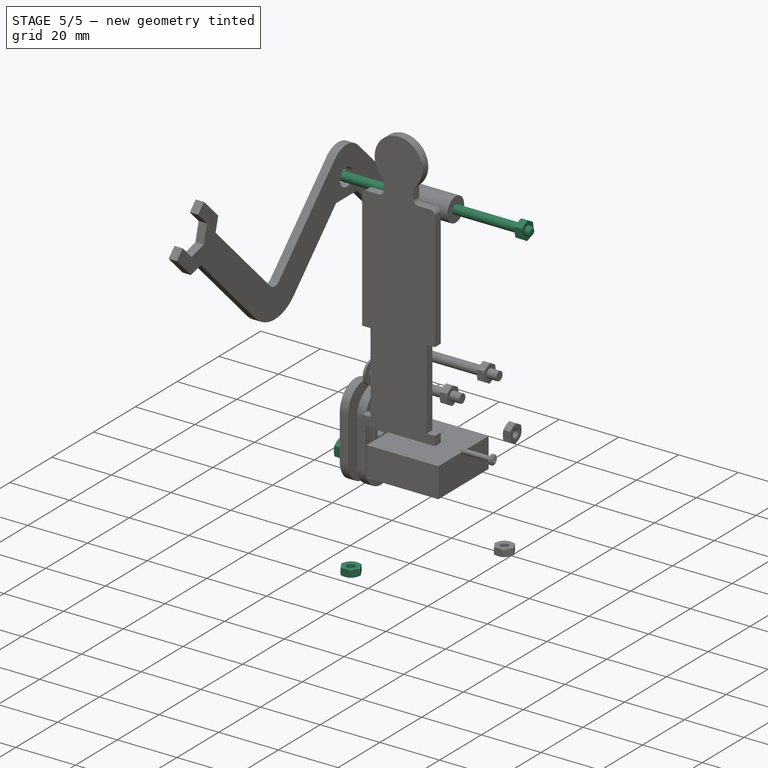
[diagram: stage 5 of 5 — iso view after this stage's code; geometry added in this stage tinted green]
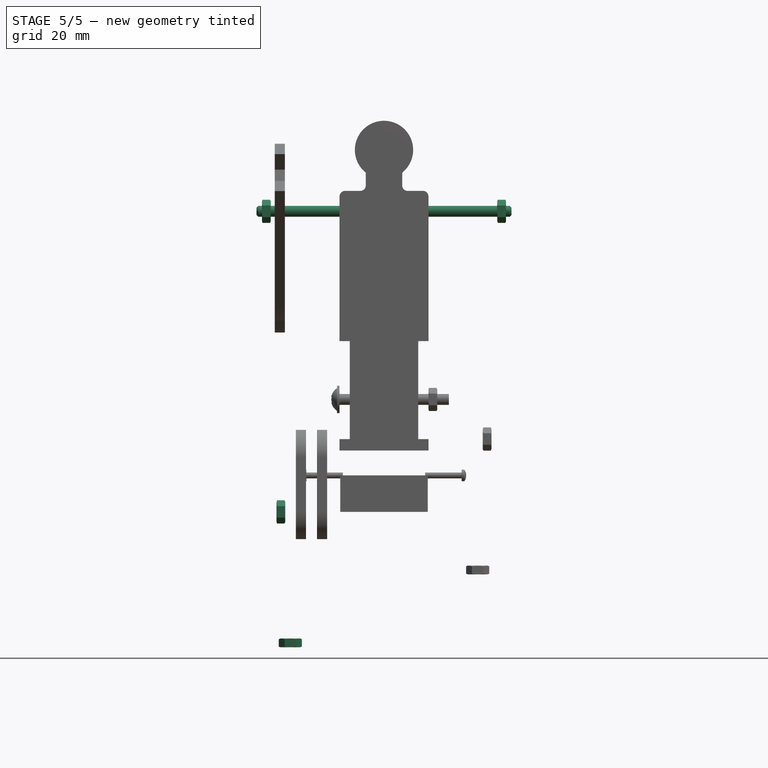
[diagram: stage 5 of 5 — front view after this stage's code; geometry added in this stage tinted green]
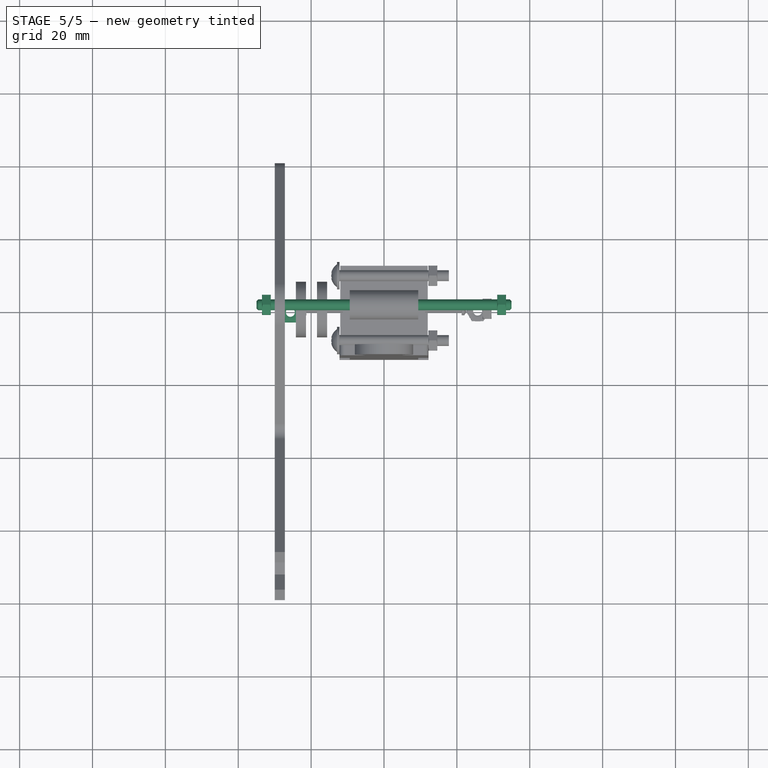
[diagram: stage 5 of 5 — top view after this stage's code; geometry added in this stage tinted green]
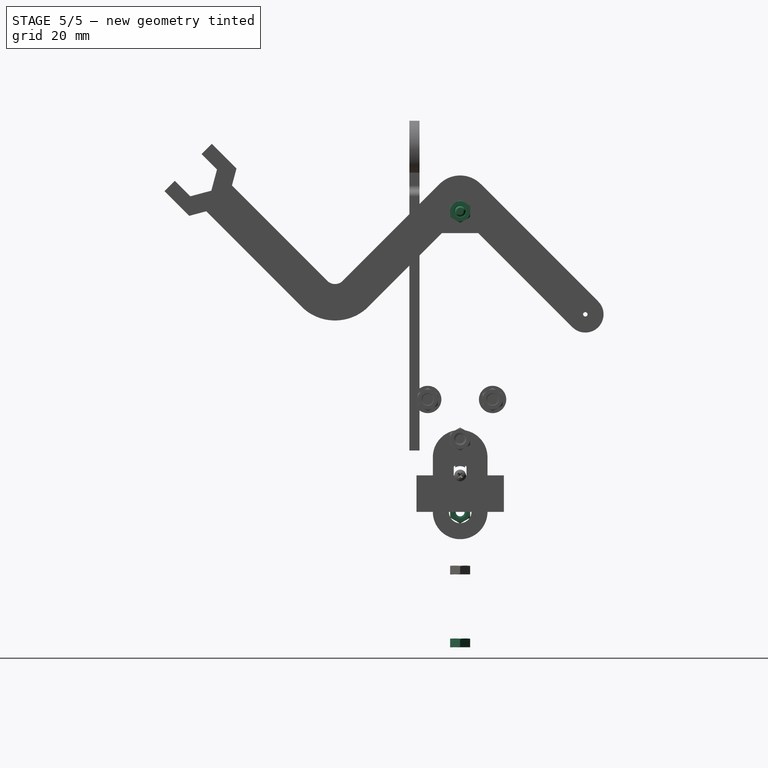
[diagram: stage 5 of 5 — right view after this stage's code; geometry added in this stage tinted green]
FEATURE [PartDesign::SubShapeBinder] Binder005
  BindCopyOnChange = 0
  BindMode = 0
  ClaimChildren = false
  Context = -> Body005 [Binder005.]
  Fuse = false
  MakeFace = true
  OffsetFill = false
  OffsetIntersection = false
  OffsetJoinType = 0
  OffsetOpenResult = false
  PartialLoad = false
  Relative = true
  Support = -> [Body004]
  _Version = 2
FEATURE [Part::FeaturePython] Screw  label="M3x14-Screw"  # Fasteners workbench fastener (typed FeaturePython)
  Placement = pos=(-15.5,7.6099e-12,-10) rot=(0,1,0;1.5708rad)
  diameter = 1
  invert = false
  leftHanded = false
  length = 6
  lengthCustom = 14
  matchOuter = false
  offset = 0
  thread = false
  type = 25
FEATURE [Part::FeaturePython] Nut  label="M3-Nut"  # Fasteners workbench fastener (typed FeaturePython)
  Placement = pos=(-29.5,7.6239e-12,-10) rot=(0,1,0;1.5708rad)
  baseObject = -> Screw [Edge71]
  diameter = 4
  invert = false
  leftHanded = false
  matchOuter = false
  offset = 0
  thread = false
  type = 25
FEATURE [PartDesign::Body] Body021  label="spacer_top_left"
  Group = -> [Clone009]
  Origin = -> Origin024
  Placement = pos=(0,0,0) rot=(0,0,1;3.14159rad)
  Tip = -> Clone009
FEATURE [Part::FeaturePython] ThreadedRod  label="M3x70-ThreadedRod"  # Fasteners workbench fastener (typed FeaturePython)
  Placement = pos=(-35,0,72.5) rot=(0,-1,0;1.5708rad)
  diameter = 4
  diameterCustom = 6
  invert = false
  leftHanded = false
  length = 70
  matchOuter = false
  offset = 0
  pitchCustom = 1
  thread = false
  type = 4
FEATURE [PartDesign::Body] Body024  label="hand_left"
  Group = -> [Clone010]
  Origin = -> Origin027
  Placement = pos=(57.2,51.26,21.23) rot=(1,0,0;0.785398rad)
  Tip = -> Clone010
FEATURE [Part::FeaturePython] Washer  label="M3-Washer"  # Fasteners workbench fastener (typed FeaturePython)
  Placement = pos=(-30.3,2.4e-14,72.5) rot=(0,-1,0;1.5708rad)
  baseObject = -> Body020 [Edge11]
  diameter = 1
  invert = false
  matchOuter = false
  offset = 0
  type = 11
FEATURE [Part::FeaturePython] Nut001  label="M3-Nut059"  # Fasteners workbench fastener (typed FeaturePython)
  Placement = pos=(-31.1,2.4e-14,72.5) rot=(0,-1,0;1.5708rad)
  baseObject = -> Washer [Edge1]
  diameter = 4
  invert = false
  leftHanded = false
  matchOuter = false
  offset = 0
  thread = false
  type = 25
FEATURE [Part::FeaturePython] Washer001  label="M3-Washer001"  # Fasteners workbench fastener (typed FeaturePython)
  Placement = pos=(30.3,-2.4e-14,72.5) rot=(0,1,0;1.5708rad)
  baseObject = -> Body021 [Edge11]
  diameter = 1
  invert = false
  matchOuter = false
  offset = 0
  type = 11
FEATURE [Part::FeaturePython] Nut002  label="M3-Nut060"  # Fasteners workbench fastener (typed FeaturePython)
  Placement = pos=(31.1,-2.4e-14,72.5) rot=(0,1,0;1.5708rad)
  baseObject = -> Washer001 [Edge1]
  diameter = 4
  invert = false
  leftHanded = false
  matchOuter = false
  offset = 0
  thread = false
  type = 25
FEATURE [Part::FeaturePython] Screw003  label="M3x10-Screw"  # Fasteners workbench fastener (typed FeaturePython)
  Placement = pos=(-25.7,-1.2e-14,-53) rot=(0.694642,0.719355,0;3.14159rad)
  baseObject = -> Body007 [Edge86]
  diameter = 1
  invert = true
  leftHanded = false
  length = 4
  lengthCustom = 10
  matchOuter = false
  offset = 0
  thread = false
  type = 25
FEATURE [Part::FeaturePython] Nut003  label="M3-Nut061"  # Fasteners workbench fastener (typed FeaturePython)
  Placement = pos=(-25.7,-1.1e-14,-44.75) rot=(1,0,0;3.14159rad)
  baseObject = -> Screw003 [Edge71]
  diameter = 4
  invert = false
  leftHanded = false
  matchOuter = false
  offset = 1.75
  thread = false
  type = 25
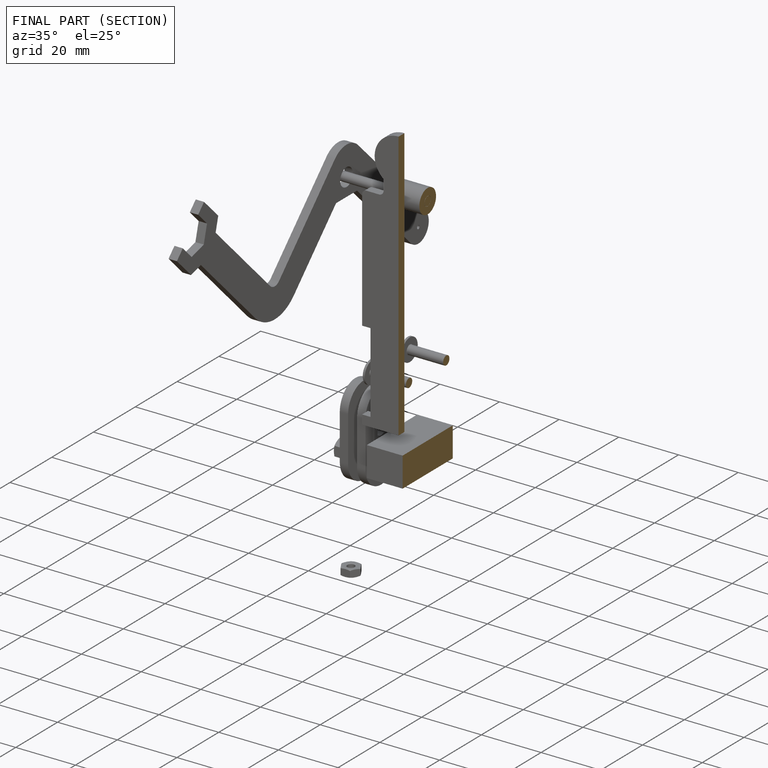
[diagram: finished part — half-section view (interior)]
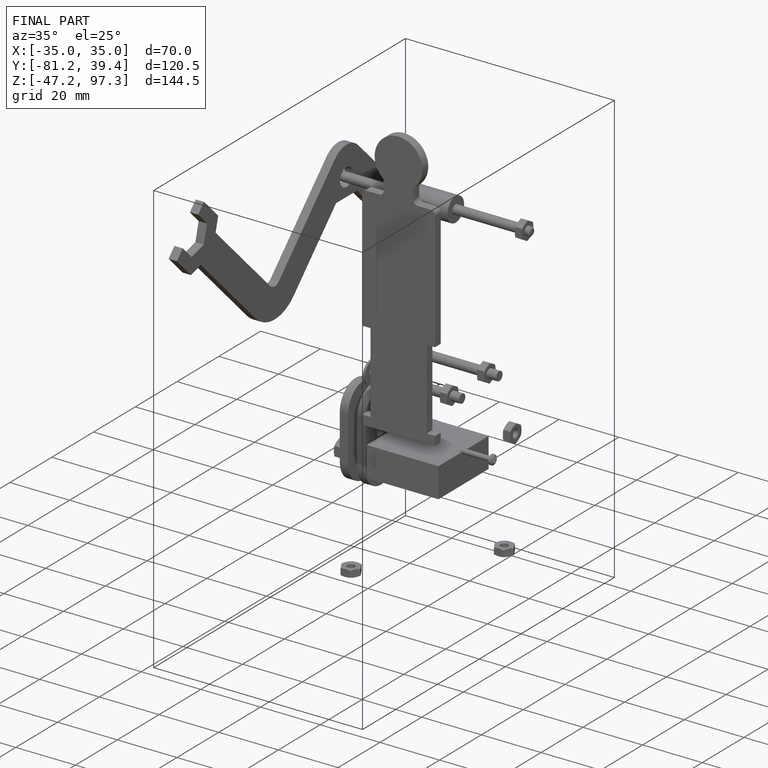
[diagram: finished part — iso view with bounding-box wireframe]
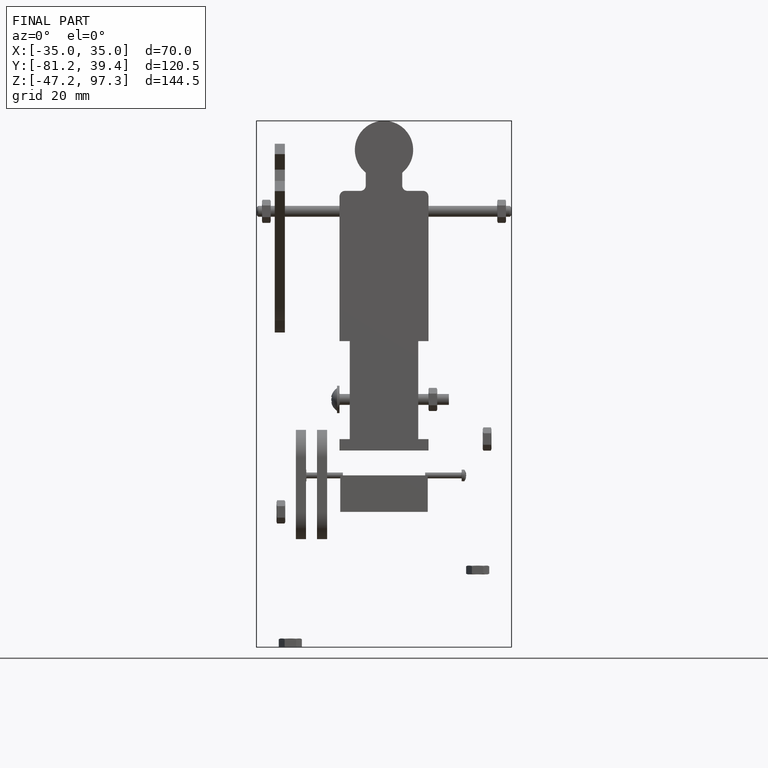
[diagram: finished part — front view with bounding-box wireframe]
